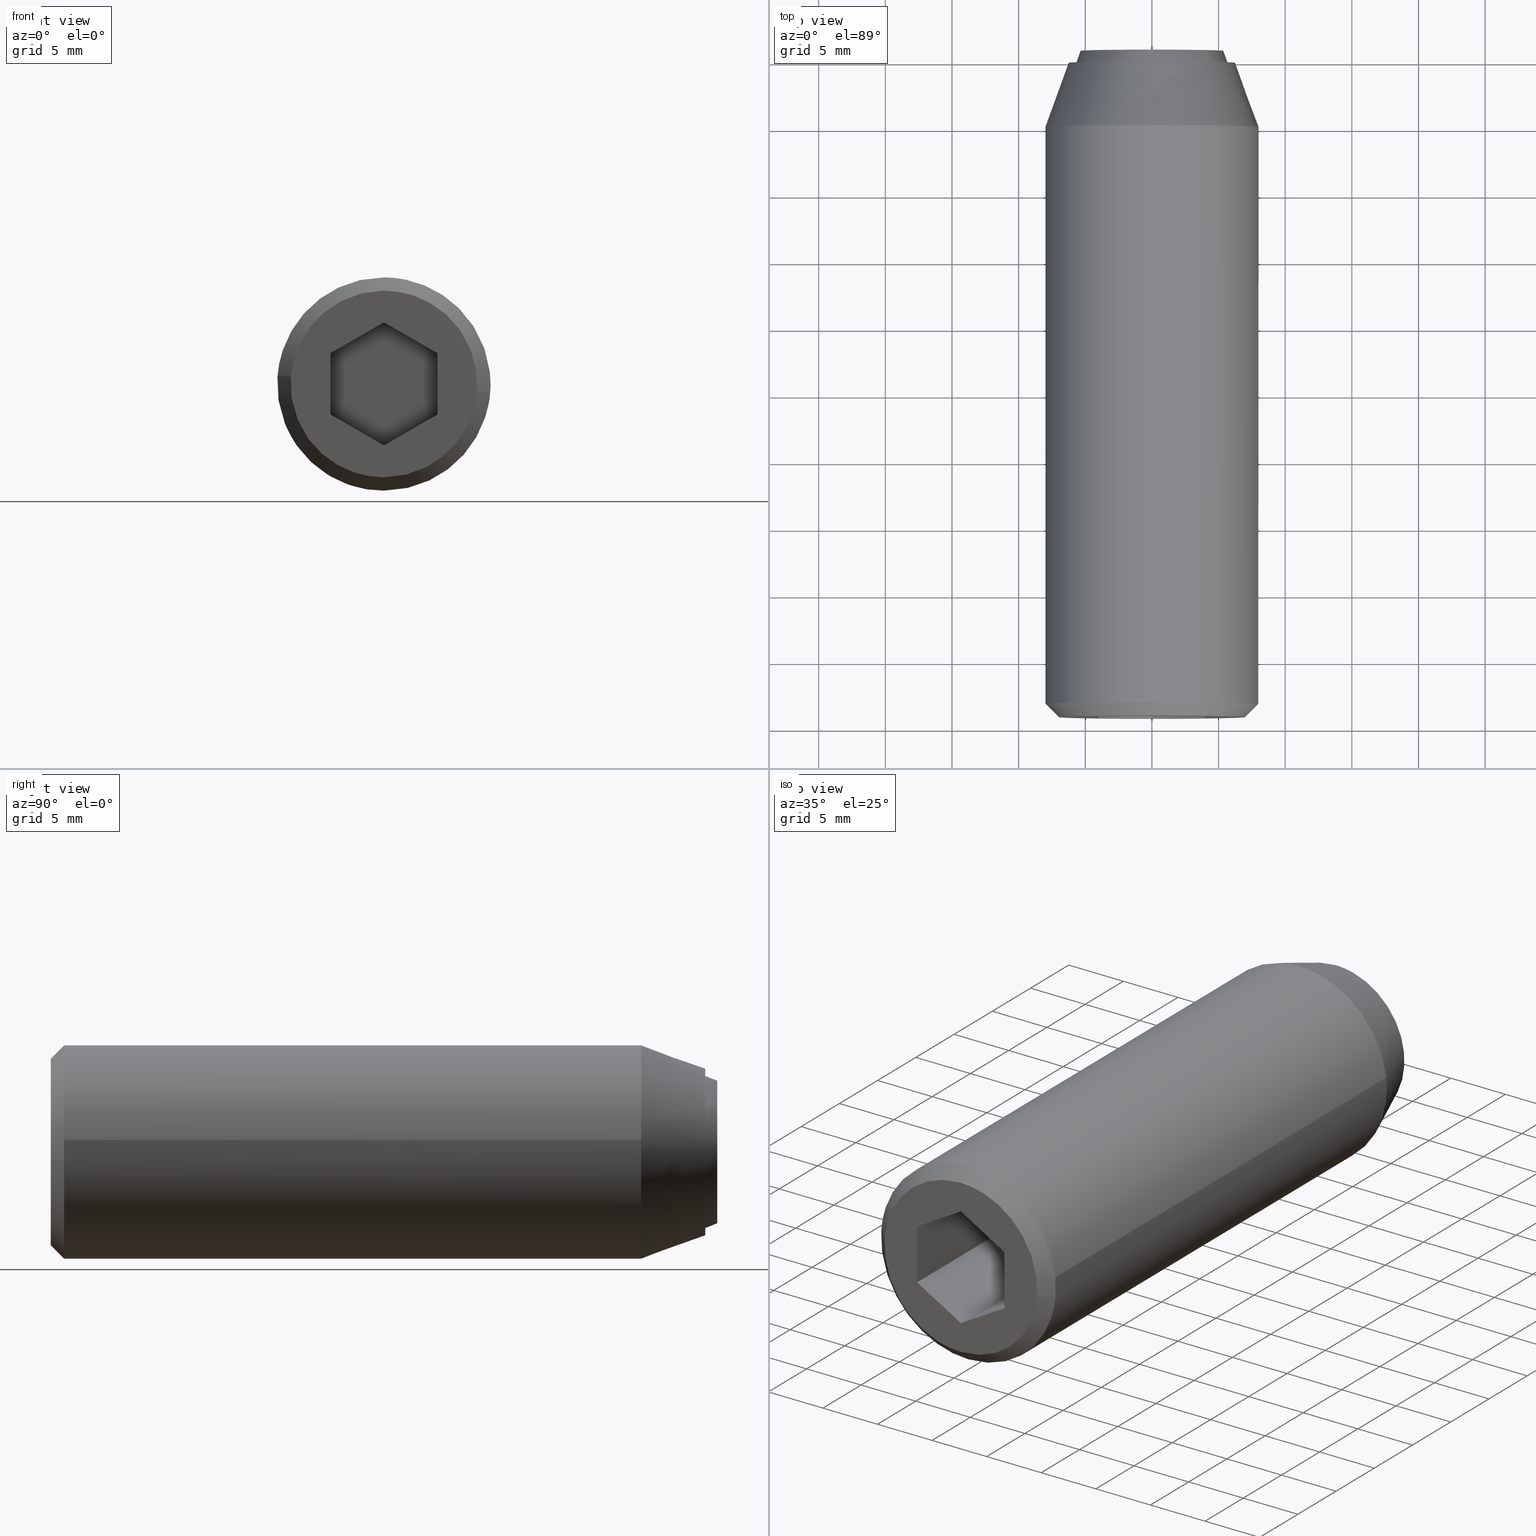
[diagram: canonical four-view strip — front | top / right | iso, engineering-drawing reading convention]
A machine part, canonical four-view strip (front | top / right | iso — engineering-drawing reading convention). The complete STEP part file that produces these views, byte-faithful:
ISO-10303-21;
HEADER;
/****************************************************************
 * Generated by software with PDE/Lib inside                    *
 * PDElib Version 4.4.1-0003, patched  Thursday August 19 11:58 *
 * International Technegroup Inc. (www.iti-oh.com)              *
 ****************************************************************/
FILE_DESCRIPTION((''),'2;1');
FILE_NAME('','2005-07-15T11:38:44',(''),(''),'','CADfix','');
FILE_SCHEMA(('AUTOMOTIVE_DESIGN'));
ENDSEC;
DATA;
#5=APPLICATION_CONTEXT('automotive design');
#6=APPLICATION_PROTOCOL_DEFINITION('Draft International Standard','automotive_design',1998,#5);
#7=PRODUCT_CONTEXT('None',#5,'mechanical');
#8=PRODUCT('body','','None',(#7));
#9=PRODUCT_RELATED_PRODUCT_CATEGORY('part','description',(#8));
#10=PRODUCT_DEFINITION_FORMATION('None','None',#8);
#11=PRODUCT_DEFINITION_CONTEXT('part definition',#5,'design');
#12=PRODUCT_DEFINITION('None','None',#10,#11);
#18=(NAMED_UNIT(*)PLANE_ANGLE_UNIT()SI_UNIT($,.RADIAN.));
#19=DIMENSIONAL_EXPONENTS(0.0,0.0,0.0,0.0,0.0,0.0,0.0);
#20=PLANE_ANGLE_MEASURE_WITH_UNIT(PLANE_ANGLE_MEASURE(0.017453292500000),#18);
#24=(CONVERSION_BASED_UNIT('DEGREE',#20)NAMED_UNIT(#19)PLANE_ANGLE_UNIT());
#28=(NAMED_UNIT(*)SI_UNIT($,.STERADIAN.)SOLID_ANGLE_UNIT());
#32=(LENGTH_UNIT()NAMED_UNIT(*)SI_UNIT(.MILLI.,.METRE.));
#34=UNCERTAINTY_MEASURE_WITH_UNIT(LENGTH_MEASURE(0.001000000000000),#32,'DISTANCE_ACCURACY_VALUE','');
#36=(GEOMETRIC_REPRESENTATION_CONTEXT(3)GLOBAL_UNCERTAINTY_ASSIGNED_CONTEXT((#34))GLOBAL_UNIT_ASSIGNED_CONTEXT((#24,#28,#32))REPRESENTATION_CONTEXT('None','None'));
#37=AXIS2_PLACEMENT_3D('',#38,#39,#40);
#38=CARTESIAN_POINT('',(0.0,0.0,0.0));
#39=DIRECTION('',(0.0,0.0,1.0));
#40=DIRECTION('',(1.0,0.0,0.0));
#41=ADVANCED_BREP_SHAPE_REPRESENTATION('',(#37,#953,#1125),#36);
#42=PRODUCT_DEFINITION_SHAPE('','',#12);
#43=SHAPE_DEFINITION_REPRESENTATION(#42,#41);
#44=CARTESIAN_POINT('',(-5.947548070825360,0.225000000000000,0.796617247851885));
#45=CARTESIAN_POINT('',(-5.952817429335399,0.225000000000000,0.752286692284590));
#46=CARTESIAN_POINT('',(-5.978325692691634,0.225000000000000,0.537688371827866));
#47=CARTESIAN_POINT('',(-5.988808790531200,0.225000000000000,0.366291237209142));
#48=CARTESIAN_POINT('',(-6.355100027740342,0.225000000000000,-5.622517553322059));
#49=CARTESIAN_POINT('',(-0.366291237209142,0.225000000000000,-5.988808790531200));
#50=CARTESIAN_POINT('',(5.622517553322059,0.225000000000000,-6.355100027740342));
#51=CARTESIAN_POINT('',(5.991443081760265,0.225000000000000,-0.323220956331997));
#52=CARTESIAN_POINT('',(5.994061724819911,0.225000000000000,-0.280406520763301));
#53=CARTESIAN_POINT('',(-5.947548070825360,-9.230625000000003,0.796617247851885));
#54=CARTESIAN_POINT('',(-5.952817429335399,-9.230625000000003,0.752286692284590));
#55=CARTESIAN_POINT('',(-5.978325692691634,-9.230625000000005,0.537688371827866));
#56=CARTESIAN_POINT('',(-5.988808790531200,-9.230625000000003,0.366291237209142));
#57=CARTESIAN_POINT('',(-6.355100027740342,-9.230625000000003,-5.622517553322059));
#58=CARTESIAN_POINT('',(-0.366291237209142,-9.230625000000003,-5.988808790531200));
#59=CARTESIAN_POINT('',(5.622517553322059,-9.230625000000003,-6.355100027740342));
#60=CARTESIAN_POINT('',(5.991443081760265,-9.230625000000005,-0.323220956331997));
#61=CARTESIAN_POINT('',(5.994061724819911,-9.230625000000007,-0.280406520763301));
#69=(BOUNDED_SURFACE()B_SPLINE_SURFACE(2,1,((#44,#53),(#45,#54),(#46,#55),(#47,#56),(#48,#57),(#49,#58),(#50,#59),(#51,#60),(#52,#61)),.UNSPECIFIED.,.F.,.F.,.U.)B_SPLINE_SURFACE_WITH_KNOTS((3,1,2,2,1,3),(2,2),(0.0,0.101390375314950,0.499035395193122,10.440160892147400,20.381286389101678,20.482697018560302),(0.0,9.455625000000007),.UNSPECIFIED.)GEOMETRIC_REPRESENTATION_ITEM()RATIONAL_B_SPLINE_SURFACE(((0.972009274446987,0.972009274446987),(0.974757537621057,0.974757537621057),(0.988284271247462,0.988284271247462),(1.0,1.0),(0.707106781186548,0.707106781186548),(1.0,1.0),(0.707106781186548,0.707106781186548),(1.002987839323941,1.002987839323941),(1.005975678647882,1.005975678647882)))REPRESENTATION_ITEM('')SURFACE());
#70=CARTESIAN_POINT('',(-5.958058109099765,-8.999999999999925,0.708197407878351));
#71=VERTEX_POINT('',#70);
#72=CARTESIAN_POINT('',(0.0,-9.0,-6.0));
#73=VERTEX_POINT('',#72);
#74=CARTESIAN_POINT('',(-5.958058109099765,-8.999999999999925,0.708197407878351));
#75=CARTESIAN_POINT('',(-6.0,-9.000000000000002,0.355340675593348));
#76=CARTESIAN_POINT('',(-6.0,-9.0,0.0));
#77=CARTESIAN_POINT('',(-6.0,-9.000000000000002,-6.0));
#78=CARTESIAN_POINT('',(0.0,-9.0,-6.0));
#86=(BOUNDED_CURVE()B_SPLINE_CURVE(2,(#74,#75,#76,#77,#78),.UNSPECIFIED.,.F.,.U.)B_SPLINE_CURVE_WITH_KNOTS((3,2,3),(0.229562700441398,0.250000000000000,0.500000000000000),.UNSPECIFIED.)CURVE()GEOMETRIC_REPRESENTATION_ITEM()RATIONAL_B_SPLINE_CURVE((0.956027198972133,0.976056214193705,1.0,0.707106781186548,1.0))REPRESENTATION_ITEM(''));
#87=EDGE_CURVE('',#71,#73,#86,.T.);
#88=ORIENTED_EDGE('',*,*,#87,.T.);
#89=CARTESIAN_POINT('',(5.988809371080108,-9.000000000000089,-0.366281745071519));
#90=VERTEX_POINT('',#89);
#91=CARTESIAN_POINT('',(0.0,-9.0,-6.0));
#92=CARTESIAN_POINT('',(5.644245364154791,-9.0,-6.0));
#93=CARTESIAN_POINT('',(5.988809371080109,-9.000000000000089,-0.366281745071519));
#101=(BOUNDED_CURVE()B_SPLINE_CURVE(2,(#91,#92,#93),.UNSPECIFIED.,.F.,.U.)B_SPLINE_CURVE_WITH_KNOTS((3,3),(0.500000000000000,0.739333235725104),.UNSPECIFIED.)CURVE()GEOMETRIC_REPRESENTATION_ITEM()RATIONAL_B_SPLINE_CURVE((1.0,0.719603672877742,0.976072627800323))REPRESENTATION_ITEM(''));
#102=EDGE_CURVE('',#73,#90,#101,.T.);
#103=ORIENTED_EDGE('',*,*,#102,.T.);
#104=CARTESIAN_POINT('',(5.988809363908164,-2.220446E-016,-0.366281862337827));
#105=VERTEX_POINT('',#104);
#106=CARTESIAN_POINT('',(5.988809363908164,-2.220446E-016,-0.366281862337827));
#107=CARTESIAN_POINT('',(5.988809371080108,-9.000000000000089,-0.366281745071519));
#108=QUASI_UNIFORM_CURVE('',1,(#106,#107),.UNSPECIFIED.,.F.,.U.);
#109=EDGE_CURVE('',#105,#90,#108,.T.);
#110=ORIENTED_EDGE('',*,*,#109,.F.);
#111=CARTESIAN_POINT('',(0.0,0.0,-6.0));
#112=VERTEX_POINT('',#111);
#113=CARTESIAN_POINT('',(0.0,0.0,-6.0));
#114=CARTESIAN_POINT('',(5.644245253428855,0.0,-6.000000000000002));
#115=CARTESIAN_POINT('',(5.988809363908164,-2.220446E-016,-0.366281862337827));
#123=(BOUNDED_CURVE()B_SPLINE_CURVE(2,(#113,#114,#115),.UNSPECIFIED.,.F.,.U.)B_SPLINE_CURVE_WITH_KNOTS((3,3),(0.500000000000000,0.739333232346480),.UNSPECIFIED.)CURVE()GEOMETRIC_REPRESENTATION_ITEM()RATIONAL_B_SPLINE_CURVE((1.0,0.719603676836046,0.976072620559271))REPRESENTATION_ITEM(''));
#124=EDGE_CURVE('',#112,#105,#123,.T.);
#125=ORIENTED_EDGE('',*,*,#124,.F.);
#126=CARTESIAN_POINT('',(-5.958058097382272,-2.271543E-016,0.708197506458624));
#127=VERTEX_POINT('',#126);
#128=CARTESIAN_POINT('',(-5.958058097382273,-2.271543E-016,0.708197506458624));
#129=CARTESIAN_POINT('',(-5.999999999999999,0.0,0.355340725404554));
#130=CARTESIAN_POINT('',(-6.0,0.0,0.0));
#131=CARTESIAN_POINT('',(-6.0,0.0,-6.0));
#132=CARTESIAN_POINT('',(0.0,0.0,-6.0));
#140=(BOUNDED_CURVE()B_SPLINE_CURVE(2,(#128,#129,#130,#131,#132),.UNSPECIFIED.,.F.,.U.)B_SPLINE_CURVE_WITH_KNOTS((3,2,3),(0.229562697645119,0.250000000000000,0.500000000000000),.UNSPECIFIED.)CURVE()GEOMETRIC_REPRESENTATION_ITEM()RATIONAL_B_SPLINE_CURVE((0.956027193491300,0.976056210917661,1.0,0.707106781186548,1.0))REPRESENTATION_ITEM(''));
#141=EDGE_CURVE('',#127,#112,#140,.T.);
#142=ORIENTED_EDGE('',*,*,#141,.F.);
#143=CARTESIAN_POINT('',(-5.958058097382272,-2.271543E-016,0.708197506458624));
#144=CARTESIAN_POINT('',(-5.958058109099765,-8.999999999999925,0.708197407878351));
#145=QUASI_UNIFORM_CURVE('',1,(#143,#144),.UNSPECIFIED.,.F.,.U.);
#146=EDGE_CURVE('',#127,#71,#145,.T.);
#147=ORIENTED_EDGE('',*,*,#146,.T.);
#148=EDGE_LOOP('',(#88,#103,#110,#125,#142,#147));
#149=FACE_OUTER_BOUND('',#148,.T.);
#150=ADVANCED_FACE('',(#149),#69,.F.);
#151=CARTESIAN_POINT('',(5.988808790531200,0.225000000000000,-0.366291237209142));
#152=CARTESIAN_POINT('',(6.355100027740342,0.225000000000000,5.622517553322059));
#153=CARTESIAN_POINT('',(0.366291237209142,0.225000000000000,5.988808790531200));
#154=CARTESIAN_POINT('',(-5.289260945037006,0.225000000000000,6.334717180395164));
#155=CARTESIAN_POINT('',(-5.958057158181998,0.225000000000000,0.708205407940551));
#156=CARTESIAN_POINT('',(5.988808790531200,-9.230625000000003,-0.366291237209142));
#157=CARTESIAN_POINT('',(6.355100027740342,-9.230625000000003,5.622517553322059));
#158=CARTESIAN_POINT('',(0.366291237209142,-9.230625000000003,5.988808790531200));
#159=CARTESIAN_POINT('',(-5.289260945037006,-9.230625000000003,6.334717180395164));
#160=CARTESIAN_POINT('',(-5.958057158181998,-9.230625000000003,0.708205407940551));
#168=(BOUNDED_SURFACE()B_SPLINE_SURFACE(2,1,((#151,#156),(#152,#157),(#153,#158),(#154,#159),(#155,#160)),.UNSPECIFIED.,.F.,.F.,.U.)B_SPLINE_SURFACE_WITH_KNOTS((3,2,3),(2,2),(0.0,9.941125496954278,19.484605974030391),(0.0,9.455625000000005),.UNSPECIFIED.)GEOMETRIC_REPRESENTATION_ITEM()RATIONAL_B_SPLINE_SURFACE(((1.0,1.0),(0.707106781186548,0.707106781186548),(1.0,1.0),(0.718822509939086,0.718822509939086),(0.977505800795127,0.977505800795127)))REPRESENTATION_ITEM('')SURFACE());
#169=CARTESIAN_POINT('',(0.0,-9.0,6.0));
#170=VERTEX_POINT('',#169);
#171=CARTESIAN_POINT('',(0.0,-9.0,6.0));
#172=CARTESIAN_POINT('',(-5.329054361555202,-8.999999999999998,6.0));
#173=CARTESIAN_POINT('',(-5.958058109099765,-8.999999999999925,0.708197407878351));
#181=(BOUNDED_CURVE()B_SPLINE_CURVE(2,(#171,#172,#173),.UNSPECIFIED.,.F.,.U.)B_SPLINE_CURVE_WITH_KNOTS((3,3),(0.0,0.229562700441398),.UNSPECIFIED.)CURVE()GEOMETRIC_REPRESENTATION_ITEM()RATIONAL_B_SPLINE_CURVE((1.0,0.731050566992842,0.956027198972133))REPRESENTATION_ITEM(''));
#182=EDGE_CURVE('',#170,#71,#181,.T.);
#183=ORIENTED_EDGE('',*,*,#182,.T.);
#184=ORIENTED_EDGE('',*,*,#146,.F.);
#185=CARTESIAN_POINT('',(0.0,0.0,6.0));
#186=VERTEX_POINT('',#185);
#187=CARTESIAN_POINT('',(0.0,0.0,6.0));
#188=CARTESIAN_POINT('',(-5.329054272761558,0.0,6.000000000000001));
#189=CARTESIAN_POINT('',(-5.958058097382273,-2.271543E-016,0.708197506458624));
#197=(BOUNDED_CURVE()B_SPLINE_CURVE(2,(#187,#188,#189),.UNSPECIFIED.,.F.,.U.)B_SPLINE_CURVE_WITH_KNOTS((3,3),(0.0,0.229562697645119),.UNSPECIFIED.)CURVE()GEOMETRIC_REPRESENTATION_ITEM()RATIONAL_B_SPLINE_CURVE((1.0,0.731050570268887,0.956027193491300))REPRESENTATION_ITEM(''));
#198=EDGE_CURVE('',#186,#127,#197,.T.);
#199=ORIENTED_EDGE('',*,*,#198,.F.);
#200=CARTESIAN_POINT('',(5.988809363908164,-2.220446E-016,-0.366281862337827));
#201=CARTESIAN_POINT('',(5.999999999999999,0.0,-0.183311879213325));
#202=CARTESIAN_POINT('',(6.0,0.0,0.0));
#203=CARTESIAN_POINT('',(6.0,0.0,6.0));
#204=CARTESIAN_POINT('',(0.0,0.0,6.0));
#212=(BOUNDED_CURVE()B_SPLINE_CURVE(2,(#200,#201,#202,#203,#204),.UNSPECIFIED.,.F.,.U.)B_SPLINE_CURVE_WITH_KNOTS((3,2,3),(0.739333232346480,0.750000000000000,1.0),.UNSPECIFIED.)CURVE()GEOMETRIC_REPRESENTATION_ITEM()RATIONAL_B_SPLINE_CURVE((0.976072620559271,0.987503104350502,1.0,0.707106781186548,1.0))REPRESENTATION_ITEM(''));
#213=EDGE_CURVE('',#105,#186,#212,.T.);
#214=ORIENTED_EDGE('',*,*,#213,.F.);
#215=ORIENTED_EDGE('',*,*,#109,.T.);
#216=CARTESIAN_POINT('',(5.988809371080109,-9.000000000000089,-0.366281745071519));
#217=CARTESIAN_POINT('',(6.0,-9.0,-0.183311820415783));
#218=CARTESIAN_POINT('',(6.0,-9.0,0.0));
#219=CARTESIAN_POINT('',(6.0,-9.000000000000002,6.0));
#220=CARTESIAN_POINT('',(0.0,-9.0,6.0));
#228=(BOUNDED_CURVE()B_SPLINE_CURVE(2,(#216,#217,#218,#219,#220),.UNSPECIFIED.,.F.,.U.)B_SPLINE_CURVE_WITH_KNOTS((3,2,3),(0.739333235725104,0.750000000000000,1.0),.UNSPECIFIED.)CURVE()GEOMETRIC_REPRESENTATION_ITEM()RATIONAL_B_SPLINE_CURVE((0.976072627800323,0.987503108308806,1.0,0.707106781186548,1.0))REPRESENTATION_ITEM(''));
#229=EDGE_CURVE('',#90,#170,#228,.T.);
#230=ORIENTED_EDGE('',*,*,#229,.T.);
#231=EDGE_LOOP('',(#183,#184,#199,#214,#215,#230));
#232=FACE_OUTER_BOUND('',#231,.T.);
#233=ADVANCED_FACE('',(#232),#168,.F.);
#234=CARTESIAN_POINT('',(-5.033104737249632,0.120202150000000,-3.631170027191690));
#235=CARTESIAN_POINT('',(-3.313123014859355,0.120202150000000,-6.015208254572740));
#236=CARTESIAN_POINT('',(-0.378882498488206,0.120202150000000,-6.194674092705710));
#237=CARTESIAN_POINT('',(5.815791594217503,0.120202150000000,-6.573556591193916));
#238=CARTESIAN_POINT('',(6.194674092705709,0.120202150000000,-0.378882498488207));
#239=CARTESIAN_POINT('',(6.573556591193915,0.120202150000000,5.815791594217502));
#240=CARTESIAN_POINT('',(0.378882498488206,0.120202150000000,6.194674092705708));
#241=CARTESIAN_POINT('',(-5.815791594217503,0.120202150000000,6.573556591193914));
#242=CARTESIAN_POINT('',(-6.194674092705709,0.120202150000000,0.378882498488205));
#243=CARTESIAN_POINT('',(-6.524155679928798,-4.931293203749999,-4.706899576787980));
#244=CARTESIAN_POINT('',(-4.294631537413486,-4.931293203750000,-7.797206127975497));
#245=CARTESIAN_POINT('',(-0.491125961723622,-4.931293203750000,-8.029838494741666));
#246=CARTESIAN_POINT('',(7.538712533018043,-4.931293203750001,-8.520964456465288));
#247=CARTESIAN_POINT('',(8.029838494741664,-4.931293203750000,-0.491125961723623));
#248=CARTESIAN_POINT('',(8.520964456465288,-4.931293203750001,7.538712533018041));
#249=CARTESIAN_POINT('',(0.491125961723622,-4.931293203750000,8.029838494741663));
#250=CARTESIAN_POINT('',(-7.538712533018043,-4.931293203750001,8.520964456465284));
#251=CARTESIAN_POINT('',(-8.029838494741664,-4.931293203750000,0.491125961723621));
#259=(BOUNDED_SURFACE()B_SPLINE_SURFACE(2,1,((#234,#243),(#235,#244),(#236,#245),(#237,#246),(#238,#247),(#239,#248),(#240,#249),(#241,#250),(#242,#251)),.UNSPECIFIED.,.F.,.F.,.U.)B_SPLINE_SURFACE_WITH_KNOTS((3,2,2,2,3),(2,2),(0.0,7.464314790066237,20.793448343755941,34.122581897445663,47.451715451135371),(0.0,5.375689005745859),.UNSPECIFIED.)GEOMETRIC_REPRESENTATION_ITEM()RATIONAL_B_SPLINE_SURFACE(((0.855662221768731,0.855662221768731),(0.835979797464467,0.835979797464467),(1.0,1.0),(0.707106781186548,0.707106781186548),(1.0,1.0),(0.707106781186548,0.707106781186548),(1.0,1.0),(0.707106781186548,0.707106781186548),(1.0,1.0)))REPRESENTATION_ITEM('')SURFACE());
#260=CARTESIAN_POINT('',(-5.068584831062561,-8.362965E-013,-3.656767398991396));
#261=VERTEX_POINT('',#260);
#262=CARTESIAN_POINT('',(0.0,0.0,-6.250000000000001));
#263=VERTEX_POINT('',#262);
#264=CARTESIAN_POINT('',(-5.068584831062561,-8.362965E-013,-3.656767398991396));
#265=CARTESIAN_POINT('',(-3.197678305974369,0.0,-6.250000000000001));
#266=CARTESIAN_POINT('',(0.0,0.0,-6.250000000000001));
#274=(BOUNDED_CURVE()B_SPLINE_CURVE(2,(#264,#265,#266),.UNSPECIFIED.,.F.,.U.)B_SPLINE_CURVE_WITH_KNOTS((3,3),(0.850743050382396,1.0),.UNSPECIFIED.)CURVE()GEOMETRIC_REPRESENTATION_ITEM()RATIONAL_B_SPLINE_CURVE((0.859068214727164,0.825134606384891,1.0))REPRESENTATION_ITEM(''));
#275=EDGE_CURVE('',#261,#263,#274,.T.);
#276=ORIENTED_EDGE('',*,*,#275,.T.);
#277=CARTESIAN_POINT('',(0.0,0.0,6.249999999999999));
#278=VERTEX_POINT('',#277);
#279=CARTESIAN_POINT('',(0.0,0.0,-6.250000000000001));
#280=CARTESIAN_POINT('',(6.249999999999999,0.0,-6.250000000000002));
#281=CARTESIAN_POINT('',(6.250000000000000,0.0,-1.291960E-015));
#282=CARTESIAN_POINT('',(6.249999999999999,0.0,6.249999999999999));
#283=CARTESIAN_POINT('',(0.0,0.0,6.249999999999999));
#291=(BOUNDED_CURVE()B_SPLINE_CURVE(2,(#279,#280,#281,#282,#283),.UNSPECIFIED.,.F.,.U.)B_SPLINE_CURVE_WITH_KNOTS((3,2,3),(0.0,0.250000000000000,0.500000000000000),.UNSPECIFIED.)CURVE()GEOMETRIC_REPRESENTATION_ITEM()RATIONAL_B_SPLINE_CURVE((1.0,0.707106781186547,1.0,0.707106781186547,1.0))REPRESENTATION_ITEM(''));
#292=EDGE_CURVE('',#263,#278,#291,.T.);
#293=ORIENTED_EDGE('',*,*,#292,.T.);
#294=CARTESIAN_POINT('',(-6.238341851358009,0.000002194436826,0.381550732824627));
#295=VERTEX_POINT('',#294);
#296=CARTESIAN_POINT('',(0.0,0.0,6.249999999999999));
#297=CARTESIAN_POINT('',(-5.879414965574015,0.000001097218413,6.249999975620121));
#298=CARTESIAN_POINT('',(-6.238341851358009,0.000002194436826,0.381550732824627));
#306=(BOUNDED_CURVE()B_SPLINE_CURVE(2,(#296,#297,#298),.UNSPECIFIED.,.F.,.U.)B_SPLINE_CURVE_WITH_KNOTS((3,3),(0.500000000000000,0.739333033893044),.UNSPECIFIED.)CURVE()GEOMETRIC_REPRESENTATION_ITEM()RATIONAL_B_SPLINE_CURVE((1.0,0.719603909338709,0.976072195235145))REPRESENTATION_ITEM(''));
#307=EDGE_CURVE('',#278,#295,#306,.T.);
#308=ORIENTED_EDGE('',*,*,#307,.T.);
#309=CARTESIAN_POINT('',(-7.985078754315566,-4.808085991073178,0.488382263480437));
#310=VERTEX_POINT('',#309);
#311=CARTESIAN_POINT('',(-6.238341851358009,0.000002194436826,0.381550732824627));
#312=CARTESIAN_POINT('',(-7.985078754315566,-4.808085991073178,0.488382263480437));
#313=QUASI_UNIFORM_CURVE('',1,(#311,#312),.UNSPECIFIED.,.F.,.U.);
#314=EDGE_CURVE('',#295,#310,#313,.T.);
#315=ORIENTED_EDGE('',*,*,#314,.T.);
#316=CARTESIAN_POINT('',(0.0,-4.808085999999999,7.999999999999998));
#317=VERTEX_POINT('',#316);
#318=CARTESIAN_POINT('',(0.0,-4.808085999999999,7.999999999999998));
#319=CARTESIAN_POINT('',(-7.525654250264107,-4.808086000000000,7.999999999999999));
#320=CARTESIAN_POINT('',(-7.985078754315566,-4.808085991073178,0.488382263480437));
#328=(BOUNDED_CURVE()B_SPLINE_CURVE(2,(#318,#319,#320),.UNSPECIFIED.,.F.,.U.)B_SPLINE_CURVE_WITH_KNOTS((3,3),(0.500000000000000,0.739333093030511),.UNSPECIFIED.)CURVE()GEOMETRIC_REPRESENTATION_ITEM()RATIONAL_B_SPLINE_CURVE((1.0,0.719603840054857,0.976072321978106))REPRESENTATION_ITEM(''));
#329=EDGE_CURVE('',#317,#310,#328,.T.);
#330=ORIENTED_EDGE('',*,*,#329,.F.);
#331=CARTESIAN_POINT('',(7.947754924152036,-4.808086000000000,0.912793331193569));
#332=VERTEX_POINT('',#331);
#333=CARTESIAN_POINT('',(7.947754924152037,-4.808086000000000,0.912793331193569));
#334=CARTESIAN_POINT('',(7.133794875592221,-4.808086000000000,7.999999999999999));
#335=CARTESIAN_POINT('',(0.0,-4.808085999999999,7.999999999999998));
#343=(BOUNDED_CURVE()B_SPLINE_CURVE(2,(#333,#334,#335),.UNSPECIFIED.,.F.,.U.)B_SPLINE_CURVE_WITH_KNOTS((3,3),(0.269767500636303,0.500000000000000),.UNSPECIFIED.)CURVE()GEOMETRIC_REPRESENTATION_ITEM()RATIONAL_B_SPLINE_CURVE((0.957344239947252,0.730265848743603,1.0))REPRESENTATION_ITEM(''));
#344=EDGE_CURVE('',#332,#317,#343,.T.);
#345=ORIENTED_EDGE('',*,*,#344,.F.);
#346=CARTESIAN_POINT('',(0.0,-4.808085999999999,-8.000000000000002));
#347=VERTEX_POINT('',#346);
#348=CARTESIAN_POINT('',(0.0,-4.808085999999999,-8.000000000000002));
#349=CARTESIAN_POINT('',(8.0,-4.808086000000000,-8.000000000000002));
#350=CARTESIAN_POINT('',(8.0,-4.808085999999999,-1.291960E-015));
#351=CARTESIAN_POINT('',(8.0,-4.808085999999999,0.457891827676239));
#352=CARTESIAN_POINT('',(7.947754924152037,-4.808086000000000,0.912793331193569));
#360=(BOUNDED_CURVE()B_SPLINE_CURVE(2,(#348,#349,#350,#351,#352),.UNSPECIFIED.,.F.,.U.)B_SPLINE_CURVE_WITH_KNOTS((3,2,3),(0.0,0.250000000000000,0.269767500636303),.UNSPECIFIED.)CURVE()GEOMETRIC_REPRESENTATION_ITEM()RATIONAL_B_SPLINE_CURVE((1.0,0.707106781186548,1.0,0.976840932442945,0.957344239947252))REPRESENTATION_ITEM(''));
#361=EDGE_CURVE('',#347,#332,#360,.T.);
#362=ORIENTED_EDGE('',*,*,#361,.F.);
#363=CARTESIAN_POINT('',(-6.487788583762318,-4.808086000000658,-4.680662270705629));
#364=VERTEX_POINT('',#363);
#365=CARTESIAN_POINT('',(-6.487788583762318,-4.808086000000659,-4.680662270705628));
#366=CARTESIAN_POINT('',(-4.093028231652281,-4.808085999999999,-8.000000000000002));
#367=CARTESIAN_POINT('',(0.0,-4.808085999999999,-8.000000000000002));
#375=(BOUNDED_CURVE()B_SPLINE_CURVE(2,(#365,#366,#367),.UNSPECIFIED.,.F.,.U.)B_SPLINE_CURVE_WITH_KNOTS((3,3),(0.850743050382243,1.0),.UNSPECIFIED.)CURVE()GEOMETRIC_REPRESENTATION_ITEM()RATIONAL_B_SPLINE_CURVE((0.859068214727234,0.825134606384711,1.0))REPRESENTATION_ITEM(''));
#376=EDGE_CURVE('',#364,#347,#375,.T.);
#377=ORIENTED_EDGE('',*,*,#376,.F.);
#378=CARTESIAN_POINT('',(-5.068584831062561,-8.362965E-013,-3.656767398991396));
#379=CARTESIAN_POINT('',(-6.487788583762318,-4.808086000000658,-4.680662270705629));
#380=QUASI_UNIFORM_CURVE('',1,(#378,#379),.UNSPECIFIED.,.F.,.U.);
#381=EDGE_CURVE('',#261,#364,#380,.T.);
#382=ORIENTED_EDGE('',*,*,#381,.F.);
#383=EDGE_LOOP('',(#276,#293,#308,#315,#330,#345,#362,#377,#382));
#384=FACE_OUTER_BOUND('',#383,.T.);
#385=ADVANCED_FACE('',(#384),#259,.T.);
#386=CARTESIAN_POINT('',(-6.194674092705709,0.120202150000000,0.378882498488205));
#387=CARTESIAN_POINT('',(-6.329993708723172,0.120202150000000,-1.833573666478589));
#388=CARTESIAN_POINT('',(-5.033104737249632,0.120202150000000,-3.631170027191690));
#389=CARTESIAN_POINT('',(-8.029838494741664,-4.931293203750000,0.491125961723621));
#390=CARTESIAN_POINT('',(-8.205246376662386,-4.931293203750000,-2.376767557048920));
#391=CARTESIAN_POINT('',(-6.524155679928798,-4.931293203749999,-4.706899576787980));
#399=(BOUNDED_SURFACE()B_SPLINE_SURFACE(2,1,((#386,#389),(#387,#390),(#388,#391)),.UNSPECIFIED.,.F.,.F.,.U.)B_SPLINE_SURFACE_WITH_KNOTS((3,3),(2,2),(0.0,5.850364563902502),(0.0,5.375689005745859),.UNSPECIFIED.)GEOMETRIC_REPRESENTATION_ITEM()RATIONAL_B_SPLINE_SURFACE(((1.0,1.0),(0.871126983722081,0.871126983722081),(0.855662221768731,0.855662221768731)))REPRESENTATION_ITEM('')SURFACE());
#400=CARTESIAN_POINT('',(-6.238341851358009,0.000002194436826,0.381550732824627));
#401=CARTESIAN_POINT('',(-6.249999236878683,0.000002100575893,0.190953425056283));
#402=CARTESIAN_POINT('',(-6.249999271657654,0.000002004843521,-0.000000044546493));
#403=CARTESIAN_POINT('',(-6.249999639426031,0.000000992526625,-2.019227388798699));
#404=CARTESIAN_POINT('',(-5.068584831062561,-8.362965E-013,-3.656767398991396));
#412=(BOUNDED_CURVE()B_SPLINE_CURVE(2,(#400,#401,#402,#403,#404),.UNSPECIFIED.,.F.,.U.)B_SPLINE_CURVE_WITH_KNOTS((3,2,3),(0.739333033893044,0.750000000000000,0.850743050382396),.UNSPECIFIED.)CURVE()GEOMETRIC_REPRESENTATION_ITEM()RATIONAL_B_SPLINE_CURVE((0.976072195235145,0.987502871847839,1.0,0.881972174801657,0.859068214727164))REPRESENTATION_ITEM(''));
#413=EDGE_CURVE('',#295,#261,#412,.T.);
#414=ORIENTED_EDGE('',*,*,#413,.T.);
#415=ORIENTED_EDGE('',*,*,#381,.T.);
#416=CARTESIAN_POINT('',(-7.985078754315566,-4.808085991073178,0.488382263480437));
#417=CARTESIAN_POINT('',(-8.0,-4.808085999999999,0.244419071603541));
#418=CARTESIAN_POINT('',(-8.0,-4.808085999999999,-1.291960E-015));
#419=CARTESIAN_POINT('',(-8.0,-4.808085999999999,-2.584611029433695));
#420=CARTESIAN_POINT('',(-6.487788583762318,-4.808086000000658,-4.680662270705629));
#428=(BOUNDED_CURVE()B_SPLINE_CURVE(2,(#416,#417,#418,#419,#420),.UNSPECIFIED.,.F.,.U.)B_SPLINE_CURVE_WITH_KNOTS((3,2,3),(0.739333093030511,0.750000000000000,0.850743050382242),.UNSPECIFIED.)CURVE()GEOMETRIC_REPRESENTATION_ITEM()RATIONAL_B_SPLINE_CURVE((0.976072321978106,0.987502941131691,1.0,0.881972174801837,0.859068214727234))REPRESENTATION_ITEM(''));
#429=EDGE_CURVE('',#310,#364,#428,.T.);
#430=ORIENTED_EDGE('',*,*,#429,.F.);
#431=ORIENTED_EDGE('',*,*,#314,.F.);
#432=EDGE_LOOP('',(#414,#415,#430,#431));
#433=FACE_OUTER_BOUND('',#432,.T.);
#434=ADVANCED_FACE('',(#433),#399,.T.);
#435=CARTESIAN_POINT('',(7.960632077250591,-3.725788149999998,0.800672556845011));
#436=CARTESIAN_POINT('',(7.954207144072814,-3.725788149999998,0.856614151896449));
#437=CARTESIAN_POINT('',(7.182521220688651,-3.725788149999997,7.575647679305657));
#438=CARTESIAN_POINT('',(0.488388316278856,-3.725788149999997,7.985078387374933));
#439=CARTESIAN_POINT('',(-7.496690071096078,-3.725788149999997,8.473466703653788));
#440=CARTESIAN_POINT('',(-7.988315882366179,-3.725788149999998,0.435455741067429));
#441=CARTESIAN_POINT('',(-7.991535647044304,-3.725788149999999,0.382813053913058));
#442=CARTESIAN_POINT('',(7.960632077250591,-49.209355296250010,0.800672556845011));
#443=CARTESIAN_POINT('',(7.954207144072814,-49.209355296250017,0.856614151896449));
#444=CARTESIAN_POINT('',(7.182521220688651,-49.209355296250003,7.575647679305657));
#445=CARTESIAN_POINT('',(0.488388316278856,-49.209355296250010,7.985078387374933));
#446=CARTESIAN_POINT('',(-7.496690071096078,-49.209355296250010,8.473466703653788));
#447=CARTESIAN_POINT('',(-7.988315882366179,-49.209355296250017,0.435455741067429));
#448=CARTESIAN_POINT('',(-7.991535647044304,-49.209355296250038,0.382813053913058));
#456=(BOUNDED_SURFACE()B_SPLINE_SURFACE(2,1,((#435,#442),(#436,#443),(#437,#444),(#438,#445),(#439,#446),(#440,#447),(#441,#448)),.UNSPECIFIED.,.F.,.F.,.U.)B_SPLINE_SURFACE_WITH_KNOTS((3,1,2,1,3),(2,2),(0.0,0.124608799829179,11.788862716255530,25.043696712194571,25.168299355111959),(0.0,45.483567146250031),.UNSPECIFIED.)GEOMETRIC_REPRESENTATION_ITEM()RATIONAL_B_SPLINE_SURFACE(((0.942326259235948,0.942326259235948),(0.940233605711273,0.940233605711273),(0.742253967444162,0.742253967444162),(1.0,1.0),(0.707106781186548,0.707106781186548),(1.002753355430020,1.002753355430020),(1.005506710860040,1.005506710860040)))REPRESENTATION_ITEM('')SURFACE());
#457=CARTESIAN_POINT('',(7.947753547482387,-48.099999999999987,0.912805317951816));
#458=VERTEX_POINT('',#457);
#459=CARTESIAN_POINT('',(0.0,-48.099999999999987,7.999999999999998));
#460=VERTEX_POINT('',#459);
#461=CARTESIAN_POINT('',(7.947753547482387,-48.100000000000001,0.912805317951816));
#462=CARTESIAN_POINT('',(7.133784045699026,-48.099999999999994,7.999999999999999));
#463=CARTESIAN_POINT('',(0.0,-48.099999999999987,7.999999999999998));
#471=(BOUNDED_CURVE()B_SPLINE_CURVE(2,(#461,#462,#463),.UNSPECIFIED.,.F.,.U.)B_SPLINE_CURVE_WITH_KNOTS((3,3),(0.269767755877842,0.500000000000000),.UNSPECIFIED.)CURVE()GEOMETRIC_REPRESENTATION_ITEM()RATIONAL_B_SPLINE_CURVE((0.957343736458233,0.730266147777666,1.0))REPRESENTATION_ITEM(''));
#472=EDGE_CURVE('',#458,#460,#471,.T.);
#473=ORIENTED_EDGE('',*,*,#472,.F.);
#474=CARTESIAN_POINT('',(7.947754924152036,-4.808086000000000,0.912793331193569));
#475=CARTESIAN_POINT('',(7.947753547482387,-48.099999999999987,0.912805317951816));
#476=QUASI_UNIFORM_CURVE('',1,(#474,#475),.UNSPECIFIED.,.F.,.U.);
#477=EDGE_CURVE('',#332,#458,#476,.T.);
#478=ORIENTED_EDGE('',*,*,#477,.F.);
#479=ORIENTED_EDGE('',*,*,#344,.T.);
#480=ORIENTED_EDGE('',*,*,#329,.T.);
#481=CARTESIAN_POINT('',(-7.985078437128507,-48.099999999999987,0.488387502813780));
#482=VERTEX_POINT('',#481);
#483=CARTESIAN_POINT('',(-7.985078754315566,-4.808085991073178,0.488382263480437));
#484=CARTESIAN_POINT('',(-7.985078437128507,-48.099999999999987,0.488387502813780));
#485=QUASI_UNIFORM_CURVE('',1,(#483,#484),.UNSPECIFIED.,.F.,.U.);
#486=EDGE_CURVE('',#310,#482,#485,.T.);
#487=ORIENTED_EDGE('',*,*,#486,.T.);
#488=CARTESIAN_POINT('',(-7.975338669870242,-48.099999999986913,0.627672765923205));
#489=VERTEX_POINT('',#488);
#490=CARTESIAN_POINT('',(-7.975338669870242,-48.099999999986913,0.627672765923205));
#491=CARTESIAN_POINT('',(-7.980816351049998,-48.100000000000001,0.558072227229160));
#492=CARTESIAN_POINT('',(-7.985078437128508,-48.099999999999994,0.488387502813780));
#500=(BOUNDED_CURVE()B_SPLINE_CURVE(2,(#490,#491,#492),.UNSPECIFIED.,.F.,.U.)B_SPLINE_CURVE_WITH_KNOTS((3,3),(0.736331300628493,0.739332997397738),.UNSPECIFIED.)CURVE()GEOMETRIC_REPRESENTATION_ITEM()RATIONAL_B_SPLINE_CURVE((0.969723356162896,0.972855512244475,0.976072117018720))REPRESENTATION_ITEM(''));
#501=EDGE_CURVE('',#489,#482,#500,.T.);
#502=ORIENTED_EDGE('',*,*,#501,.F.);
#503=CARTESIAN_POINT('',(0.0,-48.099999999999987,7.999999999999998));
#504=CARTESIAN_POINT('',(-7.395123933080755,-48.099999999999994,7.999999999999999));
#505=CARTESIAN_POINT('',(-7.975338669870242,-48.099999999986920,0.627672765923205));
#513=(BOUNDED_CURVE()B_SPLINE_CURVE(2,(#503,#504,#505),.UNSPECIFIED.,.F.,.U.)B_SPLINE_CURVE_WITH_KNOTS((3,3),(0.500000000000000,0.736331300628494),.UNSPECIFIED.)CURVE()GEOMETRIC_REPRESENTATION_ITEM()RATIONAL_B_SPLINE_CURVE((1.0,0.723120658610203,0.969723356162898))REPRESENTATION_ITEM(''));
#514=EDGE_CURVE('',#460,#489,#513,.T.);
#515=ORIENTED_EDGE('',*,*,#514,.F.);
#516=EDGE_LOOP('',(#473,#478,#479,#480,#487,#502,#515));
#517=FACE_OUTER_BOUND('',#516,.T.);
#518=ADVANCED_FACE('',(#517),#456,.T.);
#519=CARTESIAN_POINT('',(-7.985078387374934,-3.725788149999997,0.488388316278855));
#520=CARTESIAN_POINT('',(-8.473466703653790,-3.725788149999997,-7.496690071096079));
#521=CARTESIAN_POINT('',(-0.488388316278856,-3.725788149999997,-7.985078387374935));
#522=CARTESIAN_POINT('',(7.496690071096078,-3.725788149999997,-8.473466703653791));
#523=CARTESIAN_POINT('',(7.985078387374934,-3.725788149999997,-0.488388316278857));
#524=CARTESIAN_POINT('',(8.028029107158222,-3.725788149999997,0.213849744772372));
#525=CARTESIAN_POINT('',(7.947753547485708,-3.725788149999998,0.912805317922882));
#526=CARTESIAN_POINT('',(-7.985078387374934,-49.209355296250010,0.488388316278855));
#527=CARTESIAN_POINT('',(-8.473466703653790,-49.209355296250010,-7.496690071096079));
#528=CARTESIAN_POINT('',(-0.488388316278856,-49.209355296250010,-7.985078387374935));
#529=CARTESIAN_POINT('',(7.496690071096078,-49.209355296250010,-8.473466703653791));
#530=CARTESIAN_POINT('',(7.985078387374934,-49.209355296250010,-0.488388316278857));
#531=CARTESIAN_POINT('',(8.028029107158222,-49.209355296249996,0.213849744772372));
#532=CARTESIAN_POINT('',(7.947753547485708,-49.209355296250003,0.912805317922882));
#540=(BOUNDED_SURFACE()B_SPLINE_SURFACE(2,1,((#519,#526),(#520,#527),(#521,#528),(#522,#529),(#523,#530),(#524,#531),(#525,#532)),.UNSPECIFIED.,.F.,.F.,.U.)B_SPLINE_SURFACE_WITH_KNOTS((3,2,2,3),(2,2),(0.0,13.254833995939039,26.509667991878079,28.100248071390759),(0.0,45.483567146250017),.UNSPECIFIED.)GEOMETRIC_REPRESENTATION_ITEM()RATIONAL_B_SPLINE_SURFACE(((1.0,1.0),(0.707106781186548,0.707106781186548),(1.0,1.0),(0.707106781186548,0.707106781186548),(1.0,1.0),(0.964852813742386,0.964852813742386),(0.938140952186599,0.938140952186599)))REPRESENTATION_ITEM('')SURFACE());
#541=CARTESIAN_POINT('',(7.975338669870242,-48.099999999986913,-0.627672765923208));
#542=VERTEX_POINT('',#541);
#543=CARTESIAN_POINT('',(7.975338669870242,-48.099999999986913,-0.627672765923208));
#544=CARTESIAN_POINT('',(8.0,-48.099999999999994,-0.314320856161238));
#545=CARTESIAN_POINT('',(8.0,-48.099999999999987,-1.291960E-015));
#546=CARTESIAN_POINT('',(8.0,-48.100000000000009,0.457897880231555));
#547=CARTESIAN_POINT('',(7.947753547482387,-48.099999999999994,0.912805317951816));
#555=(BOUNDED_CURVE()B_SPLINE_CURVE(2,(#543,#544,#545,#546,#547),.UNSPECIFIED.,.F.,.U.)B_SPLINE_CURVE_WITH_KNOTS((3,2,3),(0.236331300628493,0.250000000000000,0.269767755877841),.UNSPECIFIED.)CURVE()GEOMETRIC_REPRESENTATION_ITEM()RATIONAL_B_SPLINE_CURVE((0.969723356162896,0.983986122576344,1.0,0.976840633408882,0.957343736458233))REPRESENTATION_ITEM(''));
#556=EDGE_CURVE('',#542,#458,#555,.T.);
#557=ORIENTED_EDGE('',*,*,#556,.F.);
#558=CARTESIAN_POINT('',(0.0,-48.099999999999987,-8.000000000000002));
#559=VERTEX_POINT('',#558);
#560=CARTESIAN_POINT('',(0.0,-48.099999999999987,-8.000000000000002));
#561=CARTESIAN_POINT('',(7.395123933080713,-48.099999999999994,-8.000000000000002));
#562=CARTESIAN_POINT('',(7.975338669870242,-48.099999999986913,-0.627672765923208));
#570=(BOUNDED_CURVE()B_SPLINE_CURVE(2,(#560,#561,#562),.UNSPECIFIED.,.F.,.U.)B_SPLINE_CURVE_WITH_KNOTS((3,3),(0.0,0.236331300628493),.UNSPECIFIED.)CURVE()GEOMETRIC_REPRESENTATION_ITEM()RATIONAL_B_SPLINE_CURVE((1.0,0.723120658610204,0.969723356162896))REPRESENTATION_ITEM(''));
#571=EDGE_CURVE('',#559,#542,#570,.T.);
#572=ORIENTED_EDGE('',*,*,#571,.F.);
#573=CARTESIAN_POINT('',(-7.985078437128507,-48.099999999999994,0.488387502813780));
#574=CARTESIAN_POINT('',(-8.0,-48.099999999999994,0.244421290642767));
#575=CARTESIAN_POINT('',(-8.0,-48.099999999999987,-1.291960E-015));
#576=CARTESIAN_POINT('',(-8.0,-48.100000000000009,-8.000000000000002));
#577=CARTESIAN_POINT('',(0.0,-48.099999999999987,-8.000000000000002));
#585=(BOUNDED_CURVE()B_SPLINE_CURVE(2,(#573,#574,#575,#576,#577),.UNSPECIFIED.,.F.,.U.)B_SPLINE_CURVE_WITH_KNOTS((3,2,3),(0.739332997397739,0.750000000000000,1.0),.UNSPECIFIED.)CURVE()GEOMETRIC_REPRESENTATION_ITEM()RATIONAL_B_SPLINE_CURVE((0.976072117018722,0.987502829090929,1.0,0.707106781186548,1.0))REPRESENTATION_ITEM(''));
#586=EDGE_CURVE('',#482,#559,#585,.T.);
#587=ORIENTED_EDGE('',*,*,#586,.F.);
#588=ORIENTED_EDGE('',*,*,#486,.F.);
#589=ORIENTED_EDGE('',*,*,#429,.T.);
#590=ORIENTED_EDGE('',*,*,#376,.T.);
#591=ORIENTED_EDGE('',*,*,#361,.T.);
#592=ORIENTED_EDGE('',*,*,#477,.T.);
#593=EDGE_LOOP('',(#557,#572,#587,#588,#589,#590,#591,#592));
#594=FACE_OUTER_BOUND('',#593,.T.);
#595=ADVANCED_FACE('',(#594),#540,.T.);
#596=CARTESIAN_POINT('',(6.953498402788557,-49.125000000000000,-0.547252192701723));
#597=CARTESIAN_POINT('',(6.406246210086835,-49.125000000000000,-7.500750595490280));
#598=CARTESIAN_POINT('',(-0.547252192701722,-49.125000000000000,-6.953498402788558));
#599=CARTESIAN_POINT('',(-7.500750595490278,-49.125000000000000,-6.406246210086835));
#600=CARTESIAN_POINT('',(-6.953498402788557,-49.125000000000000,0.547252192701721));
#601=CARTESIAN_POINT('',(8.000884676541938,-48.074374999999989,-0.629683280150792));
#602=CARTESIAN_POINT('',(7.371201396391148,-48.074374999999989,-8.630567956692730));
#603=CARTESIAN_POINT('',(-0.629683280150791,-48.074374999999989,-8.000884676541940));
#604=CARTESIAN_POINT('',(-8.630567956692730,-48.074374999999989,-7.371201396391149));
#605=CARTESIAN_POINT('',(-8.000884676541938,-48.074374999999989,0.629683280150790));
#613=(BOUNDED_SURFACE()B_SPLINE_SURFACE(2,1,((#596,#601),(#597,#602),(#598,#603),(#599,#604),(#600,#605)),.UNSPECIFIED.,.F.,.F.,.U.)B_SPLINE_SURFACE_WITH_KNOTS((3,2,3),(2,2),(0.0,13.297290886082290,26.594581772164592),(0.0,1.0),.UNSPECIFIED.)GEOMETRIC_REPRESENTATION_ITEM()RATIONAL_B_SPLINE_SURFACE(((1.0,1.0),(0.707106781186548,0.707106781186548),(1.0,1.0),(0.707106781186548,0.707106781186548),(1.0,1.0)))REPRESENTATION_ITEM('')SURFACE());
#614=ORIENTED_EDGE('',*,*,#571,.T.);
#615=CARTESIAN_POINT('',(6.978421336132511,-49.099999999998431,-0.549213670107005));
#616=VERTEX_POINT('',#615);
#617=CARTESIAN_POINT('',(6.978421336132511,-49.099999999998431,-0.549213670107005));
#618=CARTESIAN_POINT('',(7.975338669870242,-48.099999999986913,-0.627672765923208));
#619=QUASI_UNIFORM_CURVE('',1,(#617,#618),.UNSPECIFIED.,.F.,.U.);
#620=EDGE_CURVE('',#616,#542,#619,.T.);
#621=ORIENTED_EDGE('',*,*,#620,.F.);
#622=CARTESIAN_POINT('',(0.0,-49.099999999999987,-7.000000000000001));
#623=VERTEX_POINT('',#622);
#624=CARTESIAN_POINT('',(0.0,-49.099999999999987,-7.000000000000001));
#625=CARTESIAN_POINT('',(6.470733441585187,-49.099999999999987,-7.000000000000004));
#626=CARTESIAN_POINT('',(6.978421336132511,-49.099999999998431,-0.549213670107005));
#634=(BOUNDED_CURVE()B_SPLINE_CURVE(2,(#624,#625,#626),.UNSPECIFIED.,.F.,.U.)B_SPLINE_CURVE_WITH_KNOTS((3,3),(0.0,0.236331300632179),.UNSPECIFIED.)CURVE()GEOMETRIC_REPRESENTATION_ITEM()RATIONAL_B_SPLINE_CURVE((1.0,0.723120658605885,0.969723356170588))REPRESENTATION_ITEM(''));
#635=EDGE_CURVE('',#623,#616,#634,.T.);
#636=ORIENTED_EDGE('',*,*,#635,.F.);
#637=CARTESIAN_POINT('',(-6.978421336132512,-49.099999999998431,0.549213670107002));
#638=VERTEX_POINT('',#637);
#639=CARTESIAN_POINT('',(-6.978421336132512,-49.099999999998431,0.549213670107002));
#640=CARTESIAN_POINT('',(-7.000000000000001,-49.099999999999994,0.275030749065706));
#641=CARTESIAN_POINT('',(-7.0,-49.099999999999987,-1.291960E-015));
#642=CARTESIAN_POINT('',(-6.999999999999999,-49.100000000000001,-7.000000000000002));
#643=CARTESIAN_POINT('',(0.0,-49.099999999999987,-7.000000000000001));
#651=(BOUNDED_CURVE()B_SPLINE_CURVE(2,(#639,#640,#641,#642,#643),.UNSPECIFIED.,.F.,.U.)B_SPLINE_CURVE_WITH_KNOTS((3,2,3),(0.736331300632179,0.750000000000000,1.0),.UNSPECIFIED.)CURVE()GEOMETRIC_REPRESENTATION_ITEM()RATIONAL_B_SPLINE_CURVE((0.969723356170589,0.983986122580662,1.0,0.707106781186547,1.0))REPRESENTATION_ITEM(''));
#652=EDGE_CURVE('',#638,#623,#651,.T.);
#653=ORIENTED_EDGE('',*,*,#652,.F.);
#654=CARTESIAN_POINT('',(-6.978421336132512,-49.099999999998431,0.549213670107002));
#655=CARTESIAN_POINT('',(-7.975338669870242,-48.099999999986913,0.627672765923205));
#656=QUASI_UNIFORM_CURVE('',1,(#654,#655),.UNSPECIFIED.,.F.,.U.);
#657=EDGE_CURVE('',#638,#489,#656,.T.);
#658=ORIENTED_EDGE('',*,*,#657,.T.);
#659=ORIENTED_EDGE('',*,*,#501,.T.);
#660=ORIENTED_EDGE('',*,*,#586,.T.);
#661=EDGE_LOOP('',(#614,#621,#636,#653,#658,#659,#660));
#662=FACE_OUTER_BOUND('',#661,.T.);
#663=ADVANCED_FACE('',(#662),#613,.T.);
#664=CARTESIAN_POINT('',(-6.953498402788557,-49.125000000000000,0.547252192701721));
#665=CARTESIAN_POINT('',(-6.406246210086835,-49.125000000000000,7.500750595490278));
#666=CARTESIAN_POINT('',(0.547252192701722,-49.125000000000000,6.953498402788556));
#667=CARTESIAN_POINT('',(7.500750595490278,-49.125000000000000,6.406246210086834));
#668=CARTESIAN_POINT('',(6.953498402788557,-49.125000000000000,-0.547252192701723));
#669=CARTESIAN_POINT('',(-8.000884676541938,-48.074374999999989,0.629683280150790));
#670=CARTESIAN_POINT('',(-7.371201396391148,-48.074374999999989,8.630567956692730));
#671=CARTESIAN_POINT('',(0.629683280150791,-48.074374999999989,8.000884676541936));
#672=CARTESIAN_POINT('',(8.630567956692730,-48.074374999999989,7.371201396391147));
#673=CARTESIAN_POINT('',(8.000884676541938,-48.074374999999989,-0.629683280150792));
#681=(BOUNDED_SURFACE()B_SPLINE_SURFACE(2,1,((#664,#669),(#665,#670),(#666,#671),(#667,#672),(#668,#673)),.UNSPECIFIED.,.F.,.F.,.U.)B_SPLINE_SURFACE_WITH_KNOTS((3,2,3),(2,2),(0.0,13.297290886082290,26.594581772164581),(0.0,1.0),.UNSPECIFIED.)GEOMETRIC_REPRESENTATION_ITEM()RATIONAL_B_SPLINE_SURFACE(((1.0,1.0),(0.707106781186548,0.707106781186548),(1.0,1.0),(0.707106781186548,0.707106781186548),(1.0,1.0)))REPRESENTATION_ITEM('')SURFACE());
#682=ORIENTED_EDGE('',*,*,#556,.T.);
#683=ORIENTED_EDGE('',*,*,#472,.T.);
#684=ORIENTED_EDGE('',*,*,#514,.T.);
#685=ORIENTED_EDGE('',*,*,#657,.F.);
#686=CARTESIAN_POINT('',(0.0,-49.099999999999987,6.999999999999999));
#687=VERTEX_POINT('',#686);
#688=CARTESIAN_POINT('',(0.0,-49.099999999999987,6.999999999999999));
#689=CARTESIAN_POINT('',(-6.470733441585225,-49.099999999999994,7.0));
#690=CARTESIAN_POINT('',(-6.978421336132512,-49.099999999998431,0.549213670107002));
#698=(BOUNDED_CURVE()B_SPLINE_CURVE(2,(#688,#689,#690),.UNSPECIFIED.,.F.,.U.)B_SPLINE_CURVE_WITH_KNOTS((3,3),(0.500000000000000,0.736331300632180),.UNSPECIFIED.)CURVE()GEOMETRIC_REPRESENTATION_ITEM()RATIONAL_B_SPLINE_CURVE((1.0,0.723120658605884,0.969723356170590))REPRESENTATION_ITEM(''));
#699=EDGE_CURVE('',#687,#638,#698,.T.);
#700=ORIENTED_EDGE('',*,*,#699,.F.);
#701=CARTESIAN_POINT('',(6.978421336132511,-49.099999999998431,-0.549213670107005));
#702=CARTESIAN_POINT('',(7.0,-49.099999999999994,-0.275030749065709));
#703=CARTESIAN_POINT('',(7.0,-49.099999999999987,-1.291960E-015));
#704=CARTESIAN_POINT('',(6.999999999999999,-49.100000000000001,6.999999999999999));
#705=CARTESIAN_POINT('',(0.0,-49.099999999999987,6.999999999999999));
#713=(BOUNDED_CURVE()B_SPLINE_CURVE(2,(#701,#702,#703,#704,#705),.UNSPECIFIED.,.F.,.U.)B_SPLINE_CURVE_WITH_KNOTS((3,2,3),(0.236331300632179,0.250000000000000,0.500000000000000),.UNSPECIFIED.)CURVE()GEOMETRIC_REPRESENTATION_ITEM()RATIONAL_B_SPLINE_CURVE((0.969723356170589,0.983986122580662,1.0,0.707106781186547,1.0))REPRESENTATION_ITEM(''));
#714=EDGE_CURVE('',#616,#687,#713,.T.);
#715=ORIENTED_EDGE('',*,*,#714,.F.);
#716=ORIENTED_EDGE('',*,*,#620,.T.);
#717=EDGE_LOOP('',(#682,#683,#684,#685,#700,#715,#716));
#718=FACE_OUTER_BOUND('',#717,.T.);
#719=ADVANCED_FACE('',(#718),#681,.T.);
#720=CARTESIAN_POINT('',(-6.599291187213018,-9.0,6.599399976741672));
#721=CARTESIAN_POINT('',(6.599253958151892,-9.0,6.599399976741672));
#722=CARTESIAN_POINT('',(-6.599291187213018,-9.0,-6.599400298606753));
#723=CARTESIAN_POINT('',(6.599253958151893,-9.0,-6.599400298606753));
#724=B_SPLINE_SURFACE_WITH_KNOTS('',1,1,((#720,#722),(#721,#723)),.UNSPECIFIED.,.F.,.F.,.U.,(2,2),(2,2),(0.0,13.198545145364911),(0.0,13.198800275348431),.UNSPECIFIED.);
#725=ORIENTED_EDGE('',*,*,#229,.F.);
#726=ORIENTED_EDGE('',*,*,#102,.F.);
#727=ORIENTED_EDGE('',*,*,#87,.F.);
#728=ORIENTED_EDGE('',*,*,#182,.F.);
#729=EDGE_LOOP('',(#725,#726,#727,#728));
#730=FACE_OUTER_BOUND('',#729,.T.);
#731=ADVANCED_FACE('',(#730),#724,.T.);
#732=CARTESIAN_POINT('',(-4.399599984494447,-38.600000000000001,5.080220388611748));
#733=CARTESIAN_POINT('',(4.399600199071168,-38.600000000000001,5.080220388611748));
#734=CARTESIAN_POINT('',(-4.399599984494447,-38.600000000000001,-5.080220553792980));
#735=CARTESIAN_POINT('',(4.399600199071168,-38.600000000000001,-5.080220553792980));
#736=B_SPLINE_SURFACE_WITH_KNOTS('',1,1,((#732,#734),(#733,#735)),.UNSPECIFIED.,.F.,.F.,.U.,(2,2),(2,2),(0.0,8.799200183565615),(0.0,10.160440942404730),.UNSPECIFIED.);
#737=CARTESIAN_POINT('',(-4.0,-38.600000000000001,2.309401000000000));
#738=VERTEX_POINT('',#737);
#739=CARTESIAN_POINT('',(-4.0,-38.600000000000001,-2.309401000000000));
#740=VERTEX_POINT('',#739);
#741=CARTESIAN_POINT('',(-4.0,-38.600000000000001,2.309401000000000));
#742=CARTESIAN_POINT('',(-4.0,-38.600000000000001,-2.309401000000000));
#743=QUASI_UNIFORM_CURVE('',1,(#741,#742),.UNSPECIFIED.,.F.,.U.);
#744=EDGE_CURVE('',#738,#740,#743,.T.);
#745=ORIENTED_EDGE('',*,*,#744,.T.);
#746=CARTESIAN_POINT('',(0.0,-38.600000000000001,-4.618802000000000));
#747=VERTEX_POINT('',#746);
#748=CARTESIAN_POINT('',(-4.0,-38.600000000000001,-2.309401000000000));
#749=CARTESIAN_POINT('',(0.0,-38.600000000000001,-4.618802000000000));
#750=QUASI_UNIFORM_CURVE('',1,(#748,#749),.UNSPECIFIED.,.F.,.U.);
#751=EDGE_CURVE('',#740,#747,#750,.T.);
#752=ORIENTED_EDGE('',*,*,#751,.T.);
#753=CARTESIAN_POINT('',(4.0,-38.600000000000001,-2.309401000000000));
#754=VERTEX_POINT('',#753);
#755=CARTESIAN_POINT('',(0.0,-38.600000000000001,-4.618802000000000));
#756=CARTESIAN_POINT('',(4.0,-38.600000000000001,-2.309401000000000));
#757=QUASI_UNIFORM_CURVE('',1,(#755,#756),.UNSPECIFIED.,.F.,.U.);
#758=EDGE_CURVE('',#747,#754,#757,.T.);
#759=ORIENTED_EDGE('',*,*,#758,.T.);
#760=CARTESIAN_POINT('',(4.0,-38.600000000000001,2.309401000000000));
#761=VERTEX_POINT('',#760);
#762=CARTESIAN_POINT('',(4.0,-38.600000000000001,-2.309401000000000));
#763=CARTESIAN_POINT('',(4.0,-38.600000000000001,2.309401000000000));
#764=QUASI_UNIFORM_CURVE('',1,(#762,#763),.UNSPECIFIED.,.F.,.U.);
#765=EDGE_CURVE('',#754,#761,#764,.T.);
#766=ORIENTED_EDGE('',*,*,#765,.T.);
#767=CARTESIAN_POINT('',(0.0,-38.600000000000001,4.618802000000000));
#768=VERTEX_POINT('',#767);
#769=CARTESIAN_POINT('',(4.0,-38.600000000000001,2.309401000000000));
#770=CARTESIAN_POINT('',(0.0,-38.600000000000001,4.618802000000000));
#771=QUASI_UNIFORM_CURVE('',1,(#769,#770),.UNSPECIFIED.,.F.,.U.);
#772=EDGE_CURVE('',#761,#768,#771,.T.);
#773=ORIENTED_EDGE('',*,*,#772,.T.);
#774=CARTESIAN_POINT('',(0.0,-38.600000000000001,4.618802000000000));
#775=CARTESIAN_POINT('',(-4.0,-38.600000000000001,2.309401000000000));
#776=QUASI_UNIFORM_CURVE('',1,(#774,#775),.UNSPECIFIED.,.F.,.U.);
#777=EDGE_CURVE('',#768,#738,#776,.T.);
#778=ORIENTED_EDGE('',*,*,#777,.T.);
#779=EDGE_LOOP('',(#745,#752,#759,#766,#773,#778));
#780=FACE_OUTER_BOUND('',#779,.T.);
#781=ADVANCED_FACE('',(#780),#736,.F.);
#782=CARTESIAN_POINT('',(-4.199799992247222,-49.624473477611922,2.194046424526064));
#783=CARTESIAN_POINT('',(0.199800099535585,-49.624473477611922,4.734156637416895));
#784=CARTESIAN_POINT('',(-4.199799992247222,-38.075523236682052,2.194046424526064));
#785=CARTESIAN_POINT('',(0.199800099535585,-38.075523236682052,4.734156637416895));
#786=B_SPLINE_SURFACE_WITH_KNOTS('',1,1,((#782,#784),(#783,#785)),.UNSPECIFIED.,.F.,.F.,.U.,(2,2),(2,2),(0.0,5.080220552421674),(0.0,11.548950240929861),.UNSPECIFIED.);
#787=CARTESIAN_POINT('',(0.0,-49.099999999999987,4.618802000000000));
#788=VERTEX_POINT('',#787);
#789=CARTESIAN_POINT('',(-4.0,-49.099999999999987,2.309401000000000));
#790=VERTEX_POINT('',#789);
#791=CARTESIAN_POINT('',(0.0,-49.099999999999987,4.618802000000000));
#792=CARTESIAN_POINT('',(-4.0,-49.099999999999987,2.309401000000000));
#793=QUASI_UNIFORM_CURVE('',1,(#791,#792),.UNSPECIFIED.,.F.,.U.);
#794=EDGE_CURVE('',#788,#790,#793,.T.);
#795=ORIENTED_EDGE('',*,*,#794,.T.);
#796=CARTESIAN_POINT('',(-4.0,-38.600000000000001,2.309401000000000));
#797=CARTESIAN_POINT('',(-4.0,-49.099999999999987,2.309401000000000));
#798=QUASI_UNIFORM_CURVE('',1,(#796,#797),.UNSPECIFIED.,.F.,.U.);
#799=EDGE_CURVE('',#738,#790,#798,.T.);
#800=ORIENTED_EDGE('',*,*,#799,.F.);
#801=ORIENTED_EDGE('',*,*,#777,.F.);
#802=CARTESIAN_POINT('',(0.0,-38.600000000000001,4.618802000000000));
#803=CARTESIAN_POINT('',(0.0,-49.099999999999987,4.618802000000000));
#804=QUASI_UNIFORM_CURVE('',1,(#802,#803),.UNSPECIFIED.,.F.,.U.);
#805=EDGE_CURVE('',#768,#788,#804,.T.);
#806=ORIENTED_EDGE('',*,*,#805,.T.);
#807=EDGE_LOOP('',(#795,#800,#801,#806));
#808=FACE_OUTER_BOUND('',#807,.T.);
#809=ADVANCED_FACE('',(#808),#786,.F.);
#810=CARTESIAN_POINT('',(-0.199800029796360,-49.624473477611922,4.734156597152939));
#811=CARTESIAN_POINT('',(4.199800101321936,-49.624473477611922,2.194046361551755));
#812=CARTESIAN_POINT('',(-0.199800029796360,-38.075523236682052,4.734156597152940));
#813=CARTESIAN_POINT('',(4.199800101321936,-38.075523236682052,2.194046361551755));
#814=B_SPLINE_SURFACE_WITH_KNOTS('',1,1,((#810,#812),(#811,#813)),.UNSPECIFIED.,.F.,.F.,.U.,(2,2),(2,2),(0.0,5.080220597842385),(0.0,11.548950240929861),.UNSPECIFIED.);
#815=CARTESIAN_POINT('',(4.0,-49.099999999999987,2.309401000000000));
#816=VERTEX_POINT('',#815);
#817=CARTESIAN_POINT('',(4.0,-49.099999999999987,2.309401000000000));
#818=CARTESIAN_POINT('',(0.0,-49.099999999999987,4.618802000000000));
#819=QUASI_UNIFORM_CURVE('',1,(#817,#818),.UNSPECIFIED.,.F.,.U.);
#820=EDGE_CURVE('',#816,#788,#819,.T.);
#821=ORIENTED_EDGE('',*,*,#820,.T.);
#822=ORIENTED_EDGE('',*,*,#805,.F.);
#823=ORIENTED_EDGE('',*,*,#772,.F.);
#824=CARTESIAN_POINT('',(4.0,-38.600000000000001,2.309401000000000));
#825=CARTESIAN_POINT('',(4.0,-49.099999999999987,2.309401000000000));
#826=QUASI_UNIFORM_CURVE('',1,(#824,#825),.UNSPECIFIED.,.F.,.U.);
#827=EDGE_CURVE('',#761,#816,#826,.T.);
#828=ORIENTED_EDGE('',*,*,#827,.T.);
#829=EDGE_LOOP('',(#821,#822,#823,#828));
#830=FACE_OUTER_BOUND('',#829,.T.);
#831=ADVANCED_FACE('',(#830),#814,.F.);
#832=CARTESIAN_POINT('',(4.0,-49.624473477611922,2.540110194305874));
#833=CARTESIAN_POINT('',(4.0,-49.624473477611922,-2.540110276896490));
#834=CARTESIAN_POINT('',(4.0,-38.075523236682052,2.540110194305874));
#835=CARTESIAN_POINT('',(4.0,-38.075523236682052,-2.540110276896490));
#836=B_SPLINE_SURFACE_WITH_KNOTS('',1,1,((#832,#834),(#833,#835)),.UNSPECIFIED.,.F.,.F.,.U.,(2,2),(2,2),(0.0,5.080220471202364),(0.0,11.548950240929861),.UNSPECIFIED.);
#837=CARTESIAN_POINT('',(4.0,-49.099999999999987,-2.309401000000000));
#838=VERTEX_POINT('',#837);
#839=CARTESIAN_POINT('',(4.0,-49.099999999999987,-2.309401000000000));
#840=CARTESIAN_POINT('',(4.0,-49.099999999999987,2.309401000000000));
#841=QUASI_UNIFORM_CURVE('',1,(#839,#840),.UNSPECIFIED.,.F.,.U.);
#842=EDGE_CURVE('',#838,#816,#841,.T.);
#843=ORIENTED_EDGE('',*,*,#842,.T.);
#844=ORIENTED_EDGE('',*,*,#827,.F.);
#845=ORIENTED_EDGE('',*,*,#765,.F.);
#846=CARTESIAN_POINT('',(4.0,-38.600000000000001,-2.309401000000000));
#847=CARTESIAN_POINT('',(4.0,-49.099999999999987,-2.309401000000000));
#848=QUASI_UNIFORM_CURVE('',1,(#846,#847),.UNSPECIFIED.,.F.,.U.);
#849=EDGE_CURVE('',#754,#838,#848,.T.);
#850=ORIENTED_EDGE('',*,*,#849,.T.);
#851=EDGE_LOOP('',(#843,#844,#845,#850));
#852=FACE_OUTER_BOUND('',#851,.T.);
#853=ADVANCED_FACE('',(#852),#836,.F.);
#854=CARTESIAN_POINT('',(4.199799992247227,-49.624473477611922,-2.194046424526074));
#855=CARTESIAN_POINT('',(-0.199800099535585,-49.624473477611922,-4.734156637416896));
#856=CARTESIAN_POINT('',(4.199799992247227,-38.075523236682052,-2.194046424526074));
#857=CARTESIAN_POINT('',(-0.199800099535585,-38.075523236682052,-4.734156637416896));
#858=B_SPLINE_SURFACE_WITH_KNOTS('',1,1,((#854,#856),(#855,#857)),.UNSPECIFIED.,.F.,.F.,.U.,(2,2),(2,2),(0.0,5.080220552421675),(0.0,11.548950240929861),.UNSPECIFIED.);
#859=CARTESIAN_POINT('',(0.0,-49.099999999999987,-4.618802000000000));
#860=VERTEX_POINT('',#859);
#861=CARTESIAN_POINT('',(0.0,-49.099999999999987,-4.618802000000000));
#862=CARTESIAN_POINT('',(4.0,-49.099999999999987,-2.309401000000000));
#863=QUASI_UNIFORM_CURVE('',1,(#861,#862),.UNSPECIFIED.,.F.,.U.);
#864=EDGE_CURVE('',#860,#838,#863,.T.);
#865=ORIENTED_EDGE('',*,*,#864,.T.);
#866=ORIENTED_EDGE('',*,*,#849,.F.);
#867=ORIENTED_EDGE('',*,*,#758,.F.);
#868=CARTESIAN_POINT('',(0.0,-38.600000000000001,-4.618802000000000));
#869=CARTESIAN_POINT('',(0.0,-49.099999999999987,-4.618802000000000));
#870=QUASI_UNIFORM_CURVE('',1,(#868,#869),.UNSPECIFIED.,.F.,.U.);
#871=EDGE_CURVE('',#747,#860,#870,.T.);
#872=ORIENTED_EDGE('',*,*,#871,.T.);
#873=EDGE_LOOP('',(#865,#866,#867,#872));
#874=FACE_OUTER_BOUND('',#873,.T.);
#875=ADVANCED_FACE('',(#874),#858,.F.);
#876=CARTESIAN_POINT('',(0.199800029796366,-49.624473477611922,-4.734156597152929));
#877=CARTESIAN_POINT('',(-4.199800101321936,-49.624473477611922,-2.194046361551755));
#878=CARTESIAN_POINT('',(0.199800029796366,-38.075523236682052,-4.734156597152929));
#879=CARTESIAN_POINT('',(-4.199800101321936,-38.075523236682052,-2.194046361551755));
#880=B_SPLINE_SURFACE_WITH_KNOTS('',1,1,((#876,#878),(#877,#879)),.UNSPECIFIED.,.F.,.F.,.U.,(2,2),(2,2),(0.0,5.080220597842384),(0.0,11.548950240929861),.UNSPECIFIED.);
#881=CARTESIAN_POINT('',(-4.0,-49.099999999999987,-2.309401000000000));
#882=VERTEX_POINT('',#881);
#883=CARTESIAN_POINT('',(-4.0,-49.099999999999987,-2.309401000000000));
#884=CARTESIAN_POINT('',(0.0,-49.099999999999987,-4.618802000000000));
#885=QUASI_UNIFORM_CURVE('',1,(#883,#884),.UNSPECIFIED.,.F.,.U.);
#886=EDGE_CURVE('',#882,#860,#885,.T.);
#887=ORIENTED_EDGE('',*,*,#886,.T.);
#888=ORIENTED_EDGE('',*,*,#871,.F.);
#889=ORIENTED_EDGE('',*,*,#751,.F.);
#890=CARTESIAN_POINT('',(-4.0,-38.600000000000001,-2.309401000000000));
#891=CARTESIAN_POINT('',(-4.0,-49.099999999999987,-2.309401000000000));
#892=QUASI_UNIFORM_CURVE('',1,(#890,#891),.UNSPECIFIED.,.F.,.U.);
#893=EDGE_CURVE('',#740,#882,#892,.T.);
#894=ORIENTED_EDGE('',*,*,#893,.T.);
#895=EDGE_LOOP('',(#887,#888,#889,#894));
#896=FACE_OUTER_BOUND('',#895,.T.);
#897=ADVANCED_FACE('',(#896),#880,.F.);
#898=CARTESIAN_POINT('',(-4.0,-49.624473477611922,-2.540110194305874));
#899=CARTESIAN_POINT('',(-4.0,-49.624473477611922,2.540110276896490));
#900=CARTESIAN_POINT('',(-4.0,-38.075523236682052,-2.540110194305874));
#901=CARTESIAN_POINT('',(-4.0,-38.075523236682052,2.540110276896490));
#902=B_SPLINE_SURFACE_WITH_KNOTS('',1,1,((#898,#900),(#899,#901)),.UNSPECIFIED.,.F.,.F.,.U.,(2,2),(2,2),(0.0,5.080220471202364),(0.0,11.548950240929861),.UNSPECIFIED.);
#903=CARTESIAN_POINT('',(-4.0,-49.099999999999987,2.309401000000000));
#904=CARTESIAN_POINT('',(-4.0,-49.099999999999987,-2.309401000000000));
#905=QUASI_UNIFORM_CURVE('',1,(#903,#904),.UNSPECIFIED.,.F.,.U.);
#906=EDGE_CURVE('',#790,#882,#905,.T.);
#907=ORIENTED_EDGE('',*,*,#906,.T.);
#908=ORIENTED_EDGE('',*,*,#893,.F.);
#909=ORIENTED_EDGE('',*,*,#744,.F.);
#910=ORIENTED_EDGE('',*,*,#799,.T.);
#911=EDGE_LOOP('',(#907,#908,#909,#910));
#912=FACE_OUTER_BOUND('',#911,.T.);
#913=ADVANCED_FACE('',(#912),#902,.F.);
#914=CARTESIAN_POINT('',(-7.697163269087938,-49.099999999999987,7.699299972865284));
#915=CARTESIAN_POINT('',(-7.697163269087938,-49.099999999999987,-7.699300348374545));
#916=CARTESIAN_POINT('',(7.697163644597202,-49.099999999999987,7.699299972865284));
#917=CARTESIAN_POINT('',(7.697163644597202,-49.099999999999987,-7.699300348374545));
#918=B_SPLINE_SURFACE_WITH_KNOTS('',1,1,((#914,#916),(#915,#917)),.UNSPECIFIED.,.F.,.F.,.U.,(2,2),(2,2),(0.0,15.398600321239829),(0.0,15.394326913685140),.UNSPECIFIED.);
#919=ORIENTED_EDGE('',*,*,#635,.T.);
#920=ORIENTED_EDGE('',*,*,#714,.T.);
#921=ORIENTED_EDGE('',*,*,#699,.T.);
#922=ORIENTED_EDGE('',*,*,#652,.T.);
#923=EDGE_LOOP('',(#919,#920,#921,#922));
#924=FACE_OUTER_BOUND('',#923,.T.);
#925=ORIENTED_EDGE('',*,*,#906,.F.);
#926=ORIENTED_EDGE('',*,*,#794,.F.);
#927=ORIENTED_EDGE('',*,*,#820,.F.);
#928=ORIENTED_EDGE('',*,*,#842,.F.);
#929=ORIENTED_EDGE('',*,*,#864,.F.);
#930=ORIENTED_EDGE('',*,*,#886,.F.);
#931=EDGE_LOOP('',(#925,#926,#927,#928,#929,#930));
#932=FACE_BOUND('',#931,.T.);
#933=ADVANCED_FACE('',(#924,#932),#918,.T.);
#934=CARTESIAN_POINT('',(-6.874188755515923,0.0,-6.874374975772576));
#935=CARTESIAN_POINT('',(-6.874188755515923,0.0,6.874375311048700));
#936=CARTESIAN_POINT('',(6.874366451863160,0.0,-6.874374975772577));
#937=CARTESIAN_POINT('',(6.874366451863160,0.0,6.874375311048700));
#938=B_SPLINE_SURFACE_WITH_KNOTS('',1,1,((#934,#936),(#935,#937)),.UNSPECIFIED.,.F.,.F.,.U.,(2,2),(2,2),(0.0,13.748750286821281),(0.0,13.748555207379081),.UNSPECIFIED.);
#939=ORIENTED_EDGE('',*,*,#275,.F.);
#940=ORIENTED_EDGE('',*,*,#413,.F.);
#941=ORIENTED_EDGE('',*,*,#307,.F.);
#942=ORIENTED_EDGE('',*,*,#292,.F.);
#943=EDGE_LOOP('',(#939,#940,#941,#942));
#944=FACE_OUTER_BOUND('',#943,.T.);
#945=ORIENTED_EDGE('',*,*,#124,.T.);
#946=ORIENTED_EDGE('',*,*,#213,.T.);
#947=ORIENTED_EDGE('',*,*,#198,.T.);
#948=ORIENTED_EDGE('',*,*,#141,.T.);
#949=EDGE_LOOP('',(#945,#946,#947,#948));
#950=FACE_BOUND('',#949,.T.);
#951=ADVANCED_FACE('',(#944,#950),#938,.T.);
#952=CLOSED_SHELL('',(#150,#233,#385,#434,#518,#595,#663,#719,#731,#781,#809,#831,#853,#875,#897,#913,#933,#951));
#953=MANIFOLD_SOLID_BREP('body',#952);
#954=APPLICATION_CONTEXT('automotive design');
#955=APPLICATION_PROTOCOL_DEFINITION('Draft International Standard','automotive_design',1998,#954);
#956=PRODUCT_CONTEXT('None',#954,'mechanical');
#957=PRODUCT('ball','','None',(#956));
#958=PRODUCT_RELATED_PRODUCT_CATEGORY('part','description',(#957));
#959=PRODUCT_DEFINITION_FORMATION('None','None',#957);
#960=PRODUCT_DEFINITION_CONTEXT('part definition',#954,'design');
#961=PRODUCT_DEFINITION('None','None',#959,#960);
#967=(NAMED_UNIT(*)PLANE_ANGLE_UNIT()SI_UNIT($,.RADIAN.));
#968=DIMENSIONAL_EXPONENTS(0.0,0.0,0.0,0.0,0.0,0.0,0.0);
#969=PLANE_ANGLE_MEASURE_WITH_UNIT(PLANE_ANGLE_MEASURE(0.017453292500000),#967);
#973=(CONVERSION_BASED_UNIT('DEGREE',#969)NAMED_UNIT(#968)PLANE_ANGLE_UNIT());
#977=(NAMED_UNIT(*)SI_UNIT($,.STERADIAN.)SOLID_ANGLE_UNIT());
#981=(LENGTH_UNIT()NAMED_UNIT(*)SI_UNIT(.MILLI.,.METRE.));
#983=UNCERTAINTY_MEASURE_WITH_UNIT(LENGTH_MEASURE(0.001000000000000),#981,'DISTANCE_ACCURACY_VALUE','');
#985=(GEOMETRIC_REPRESENTATION_CONTEXT(3)GLOBAL_UNCERTAINTY_ASSIGNED_CONTEXT((#983))GLOBAL_UNIT_ASSIGNED_CONTEXT((#973,#977,#981))REPRESENTATION_CONTEXT('None','None'));
#986=AXIS2_PLACEMENT_3D('',#987,#988,#989);
#987=CARTESIAN_POINT('',(0.0,0.0,0.0));
#988=DIRECTION('',(0.0,0.0,1.0));
#989=DIRECTION('',(1.0,0.0,0.0));
#990=ADVANCED_BREP_SHAPE_REPRESENTATION('',(#986,#1085,#1141),#985);
#991=PRODUCT_DEFINITION_SHAPE('','',#961);
#992=SHAPE_DEFINITION_REPRESENTATION(#991,#990);
#993=CARTESIAN_POINT('',(-3.028492904751711,2.385804239656766,-3.028492904751711));
#994=CARTESIAN_POINT('',(-2.884428461843683,1.900500287936904,-3.845904615791577));
#995=CARTESIAN_POINT('',(-1.316923014224977,1.056373571428571,-5.267692056899907));
#996=CARTESIAN_POINT('',(1.316923014224978,1.056373571428570,-5.267692056899907));
#997=CARTESIAN_POINT('',(2.884428461843685,1.900500287936903,-3.845904615791577));
#998=CARTESIAN_POINT('',(3.028492904751713,2.385804239656764,-3.028492904751711));
#999=CARTESIAN_POINT('',(-3.845904615791577,1.900500287936905,-2.884428461843683));
#1000=CARTESIAN_POINT('',(-3.950769042674930,1.056373571428571,-3.950769042674930));
#1001=CARTESIAN_POINT('',(-2.089321569082894,-0.777943534199364,-6.267964707248679));
#1002=CARTESIAN_POINT('',(2.089321569082894,-0.777943534199365,-6.267964707248679));
#1003=CARTESIAN_POINT('',(3.950769042674930,1.056373571428570,-3.950769042674930));
#1004=CARTESIAN_POINT('',(3.845904615791577,1.900500287936903,-2.884428461843683));
#1005=CARTESIAN_POINT('',(-5.267692056899907,1.056373571428572,-1.316923014224977));
#1006=CARTESIAN_POINT('',(-6.267964707248684,-0.777943534199363,-2.089321569082894));
#1007=CARTESIAN_POINT('',(-5.052988182826792,-7.816155000000023,-5.052988182826791));
#1008=CARTESIAN_POINT('',(5.052988182826790,-7.816155000000023,-5.052988182826791));
#1009=CARTESIAN_POINT('',(6.267964707248679,-0.777943534199365,-2.089321569082894));
#1010=CARTESIAN_POINT('',(5.267692056899907,1.056373571428570,-1.316923014224977));
#1011=CARTESIAN_POINT('',(-5.267692056899907,1.056373571428572,1.316923014224977));
#1012=CARTESIAN_POINT('',(-6.267964707248684,-0.777943534199363,2.089321569082894));
#1013=CARTESIAN_POINT('',(-5.052988182826792,-7.816155000000023,5.052988182826791));
#1014=CARTESIAN_POINT('',(5.052988182826790,-7.816155000000023,5.052988182826791));
#1015=CARTESIAN_POINT('',(6.267964707248679,-0.777943534199365,2.089321569082894));
#1016=CARTESIAN_POINT('',(5.267692056899907,1.056373571428570,1.316923014224977));
#1017=CARTESIAN_POINT('',(-3.845904615791577,1.900500287936905,2.884428461843683));
#1018=CARTESIAN_POINT('',(-3.950769042674930,1.056373571428572,3.950769042674930));
#1019=CARTESIAN_POINT('',(-2.089321569082894,-0.777943534199363,6.267964707248679));
#1020=CARTESIAN_POINT('',(2.089321569082894,-0.777943534199364,6.267964707248679));
#1021=CARTESIAN_POINT('',(3.950769042674930,1.056373571428571,3.950769042674930));
#1022=CARTESIAN_POINT('',(3.845904615791577,1.900500287936903,2.884428461843683));
#1023=CARTESIAN_POINT('',(-3.028492904751711,2.385804239656766,3.028492904751711));
#1024=CARTESIAN_POINT('',(-2.884428461843683,1.900500287936905,3.845904615791577));
#1025=CARTESIAN_POINT('',(-1.316923014224977,1.056373571428572,5.267692056899907));
#1026=CARTESIAN_POINT('',(1.316923014224978,1.056373571428571,5.267692056899907));
#1027=CARTESIAN_POINT('',(2.884428461843685,1.900500287936904,3.845904615791577));
#1028=CARTESIAN_POINT('',(3.028492904751713,2.385804239656764,3.028492904751711));
#1036=(BOUNDED_SURFACE()B_SPLINE_SURFACE(2,2,((#993,#999,#1005,#1011,#1017,#1023),(#994,#1000,#1006,#1012,#1018,#1024),(#995,#1001,#1007,#1013,#1019,#1025),(#996,#1002,#1008,#1014,#1020,#1026),(#997,#1003,#1009,#1015,#1021,#1027),(#998,#1004,#1010,#1016,#1022,#1028)),.UNSPECIFIED.,.F.,.F.,.U.)B_SPLINE_SURFACE_WITH_KNOTS((3,1,1,1,3),(3,1,1,1,3),(0.0,7.460373557746064,14.920747115492130,22.381120673238190,29.841494230984260),(0.0,7.460373557746062,14.920747115492119,22.381120673238190,29.841494230984249),.UNSPECIFIED.)GEOMETRIC_REPRESENTATION_ITEM()RATIONAL_B_SPLINE_SURFACE(((6.673931016841601,5.255448262631201,3.836965508420800,3.836965508420800,5.255448262631201,6.673931016841601),(5.255448262631201,3.836965508420800,2.418482754210400,2.418482754210400,3.836965508420800,5.255448262631201),(3.836965508420800,2.418482754210400,1.0,1.0,2.418482754210400,3.836965508420800),(3.836965508420800,2.418482754210400,1.0,1.0,2.418482754210400,3.836965508420800),(5.255448262631201,3.836965508420800,2.418482754210400,2.418482754210400,3.836965508420800,5.255448262631201),(6.673931016841601,5.255448262631201,3.836965508420800,3.836965508420800,5.255448262631201,6.673931016841601)))REPRESENTATION_ITEM('')SURFACE());
#1037=CARTESIAN_POINT('',(0.0,0.900000000000000,-5.350000188408870));
#1038=VERTEX_POINT('',#1037);
#1039=CARTESIAN_POINT('',(0.0,0.900000000000000,5.350000188408869));
#1040=VERTEX_POINT('',#1039);
#1041=CARTESIAN_POINT('',(0.0,0.900000000000000,-5.350000188408870));
#1042=CARTESIAN_POINT('',(5.350000188408870,0.900000000000000,-5.350000188408870));
#1043=CARTESIAN_POINT('',(5.350000188408870,0.900000000000000,-4.785857E-016));
#1044=CARTESIAN_POINT('',(5.350000188408870,0.900000000000000,5.350000188408869));
#1045=CARTESIAN_POINT('',(0.0,0.900000000000000,5.350000188408869));
#1053=(BOUNDED_CURVE()B_SPLINE_CURVE(2,(#1041,#1042,#1043,#1044,#1045),.UNSPECIFIED.,.F.,.U.)B_SPLINE_CURVE_WITH_KNOTS((3,2,3),(0.0,0.250000000000000,0.500000000000000),.UNSPECIFIED.)CURVE()GEOMETRIC_REPRESENTATION_ITEM()RATIONAL_B_SPLINE_CURVE((1.0,0.707106781186548,1.0,0.707106781186548,1.0))REPRESENTATION_ITEM(''));
#1054=EDGE_CURVE('',#1038,#1040,#1053,.T.);
#1055=ORIENTED_EDGE('',*,*,#1054,.T.);
#1056=CARTESIAN_POINT('',(0.0,0.900000000000000,5.350000188408869));
#1057=CARTESIAN_POINT('',(-5.350000188408870,0.900000000000000,5.350000188408869));
#1058=CARTESIAN_POINT('',(-5.350000188408870,0.900000000000000,-4.785857E-016));
#1059=CARTESIAN_POINT('',(-5.350000188408870,0.900000000000000,-5.350000188408870));
#1060=CARTESIAN_POINT('',(0.0,0.900000000000000,-5.350000188408870));
#1068=(BOUNDED_CURVE()B_SPLINE_CURVE(2,(#1056,#1057,#1058,#1059,#1060),.UNSPECIFIED.,.F.,.U.)B_SPLINE_CURVE_WITH_KNOTS((3,2,3),(0.500000000000000,0.750000000000000,1.0),.UNSPECIFIED.)CURVE()GEOMETRIC_REPRESENTATION_ITEM()RATIONAL_B_SPLINE_CURVE((1.0,0.707106781186548,1.0,0.707106781186548,1.0))REPRESENTATION_ITEM(''));
#1069=EDGE_CURVE('',#1040,#1038,#1068,.T.);
#1070=ORIENTED_EDGE('',*,*,#1069,.T.);
#1071=EDGE_LOOP('',(#1055,#1070));
#1072=FACE_OUTER_BOUND('',#1071,.T.);
#1073=ADVANCED_FACE('',(#1072),#1036,.T.);
#1074=CARTESIAN_POINT('',(-5.884465387380077,0.900000000000000,5.884465387380133));
#1075=CARTESIAN_POINT('',(-5.884465387380077,0.900000000000000,-5.884465483045592));
#1076=CARTESIAN_POINT('',(5.884465483045535,0.900000000000000,5.884465387380134));
#1077=CARTESIAN_POINT('',(5.884465483045535,0.900000000000000,-5.884465483045592));
#1078=B_SPLINE_SURFACE_WITH_KNOTS('',1,1,((#1074,#1076),(#1075,#1077)),.UNSPECIFIED.,.F.,.F.,.U.,(2,2),(2,2),(0.0,11.768930870425731),(0.0,11.768930870425610),.UNSPECIFIED.);
#1079=ORIENTED_EDGE('',*,*,#1069,.F.);
#1080=ORIENTED_EDGE('',*,*,#1054,.F.);
#1081=EDGE_LOOP('',(#1079,#1080));
#1082=FACE_OUTER_BOUND('',#1081,.T.);
#1083=ADVANCED_FACE('',(#1082),#1078,.F.);
#1084=CLOSED_SHELL('',(#1073,#1083));
#1085=MANIFOLD_SOLID_BREP('ball',#1084);
#1086=APPLICATION_CONTEXT('automotive design');
#1087=APPLICATION_PROTOCOL_DEFINITION('Draft International Standard','automotive_design',1998,#1086);
#1088=PRODUCT_CONTEXT('None',#1086,'mechanical');
#1089=PRODUCT('SCS_M16_50_F_16787_36','','None',(#1088));
#1090=PRODUCT_RELATED_PRODUCT_CATEGORY('part','description',(#1089));
#1091=PRODUCT_DEFINITION_FORMATION('None','None',#1089);
#1092=PRODUCT_DEFINITION_CONTEXT('part definition',#1086,'design');
#1093=PRODUCT_DEFINITION('None','None',#1091,#1092);
#1099=(NAMED_UNIT(*)PLANE_ANGLE_UNIT()SI_UNIT($,.RADIAN.));
#1100=DIMENSIONAL_EXPONENTS(0.0,0.0,0.0,0.0,0.0,0.0,0.0);
#1101=PLANE_ANGLE_MEASURE_WITH_UNIT(PLANE_ANGLE_MEASURE(0.017453292500000),#1099);
#1105=(CONVERSION_BASED_UNIT('DEGREE',#1101)NAMED_UNIT(#1100)PLANE_ANGLE_UNIT());
#1109=(NAMED_UNIT(*)SI_UNIT($,.STERADIAN.)SOLID_ANGLE_UNIT());
#1113=(LENGTH_UNIT()NAMED_UNIT(*)SI_UNIT(.MILLI.,.METRE.));
#1115=UNCERTAINTY_MEASURE_WITH_UNIT(LENGTH_MEASURE(0.001000000000000),#1113,'DISTANCE_ACCURACY_VALUE','');
#1117=(GEOMETRIC_REPRESENTATION_CONTEXT(3)GLOBAL_UNCERTAINTY_ASSIGNED_CONTEXT((#1115))GLOBAL_UNIT_ASSIGNED_CONTEXT((#1105,#1109,#1113))REPRESENTATION_CONTEXT('None','None'));
#1118=AXIS2_PLACEMENT_3D('',#1119,#1120,#1121);
#1119=CARTESIAN_POINT('',(0.0,0.0,0.0));
#1120=DIRECTION('',(0.0,0.0,1.0));
#1121=DIRECTION('',(1.0,0.0,0.0));
#1122=SHAPE_REPRESENTATION('',(#1118,#1129,#1145),#1117);
#1123=PRODUCT_DEFINITION_SHAPE('','',#1093);
#1124=SHAPE_DEFINITION_REPRESENTATION(#1123,#1122);
#1125=AXIS2_PLACEMENT_3D('',#1126,#1127,#1128);
#1126=CARTESIAN_POINT('',(0.0,0.0,0.0));
#1127=DIRECTION('',(0.0,0.0,1.0));
#1128=DIRECTION('',(1.0,0.0,0.0));
#1129=AXIS2_PLACEMENT_3D('',#1130,#1131,#1132);
#1130=CARTESIAN_POINT('',(0.0,0.0,0.0));
#1131=DIRECTION('',(0.0,0.0,1.0));
#1132=DIRECTION('',(1.0,0.0,0.0));
#1133=NEXT_ASSEMBLY_USAGE_OCCURRENCE('SCS_M16_50_F_16787_36','SCS_M16_50_F_16787_36','SCS_M16_50_F_16787_36',#1093,#12,'SCS_M16_50_F_16787_36');
#1134=PRODUCT_DEFINITION_SHAPE('SCS_M16_50_F_16787_36','SCS_M16_50_F_16787_36',#1133);
#1135=ITEM_DEFINED_TRANSFORMATION('SCS_M16_50_F_16787_36','SCS_M16_50_F_16787_36',#1125,#1129);
#1139=(REPRESENTATION_RELATIONSHIP('SCS_M16_50_F_16787_36','SCS_M16_50_F_16787_36',#41,#1122)REPRESENTATION_RELATIONSHIP_WITH_TRANSFORMATION(#1135)SHAPE_REPRESENTATION_RELATIONSHIP());
#1140=CONTEXT_DEPENDENT_SHAPE_REPRESENTATION(#1139,#1134);
#1141=AXIS2_PLACEMENT_3D('',#1142,#1143,#1144);
#1142=CARTESIAN_POINT('',(0.0,0.0,0.0));
#1143=DIRECTION('',(0.0,0.0,1.0));
#1144=DIRECTION('',(1.0,0.0,0.0));
#1145=AXIS2_PLACEMENT_3D('',#1146,#1147,#1148);
#1146=CARTESIAN_POINT('',(0.0,0.0,0.0));
#1147=DIRECTION('',(0.0,0.0,1.0));
#1148=DIRECTION('',(1.0,0.0,0.0));
#1149=NEXT_ASSEMBLY_USAGE_OCCURRENCE('SCS_M16_50_F_16787_36','SCS_M16_50_F_16787_36','SCS_M16_50_F_16787_36',#1093,#961,'SCS_M16_50_F_16787_36');
#1150=PRODUCT_DEFINITION_SHAPE('SCS_M16_50_F_16787_36','SCS_M16_50_F_16787_36',#1149);
#1151=ITEM_DEFINED_TRANSFORMATION('SCS_M16_50_F_16787_36','SCS_M16_50_F_16787_36',#1141,#1145);
#1155=(REPRESENTATION_RELATIONSHIP('SCS_M16_50_F_16787_36','SCS_M16_50_F_16787_36',#990,#1122)REPRESENTATION_RELATIONSHIP_WITH_TRANSFORMATION(#1151)SHAPE_REPRESENTATION_RELATIONSHIP());
#1156=CONTEXT_DEPENDENT_SHAPE_REPRESENTATION(#1155,#1150);
#1162=(NAMED_UNIT(*)PLANE_ANGLE_UNIT()SI_UNIT($,.RADIAN.));
#1163=DIMENSIONAL_EXPONENTS(0.0,0.0,0.0,0.0,0.0,0.0,0.0);
#1164=PLANE_ANGLE_MEASURE_WITH_UNIT(PLANE_ANGLE_MEASURE(0.017453292500000),#1162);
#1168=(CONVERSION_BASED_UNIT('DEGREE',#1164)NAMED_UNIT(#1163)PLANE_ANGLE_UNIT());
#1172=(NAMED_UNIT(*)SI_UNIT($,.STERADIAN.)SOLID_ANGLE_UNIT());
#1176=(LENGTH_UNIT()NAMED_UNIT(*)SI_UNIT(.MILLI.,.METRE.));
#1178=UNCERTAINTY_MEASURE_WITH_UNIT(LENGTH_MEASURE(0.001000000000000),#1176,'DISTANCE_ACCURACY_VALUE','');
#1180=(GEOMETRIC_REPRESENTATION_CONTEXT(3)GLOBAL_UNCERTAINTY_ASSIGNED_CONTEXT((#1178))GLOBAL_UNIT_ASSIGNED_CONTEXT((#1168,#1172,#1176))REPRESENTATION_CONTEXT('','3D'));
ENDSEC;
END-ISO-10303-21;
